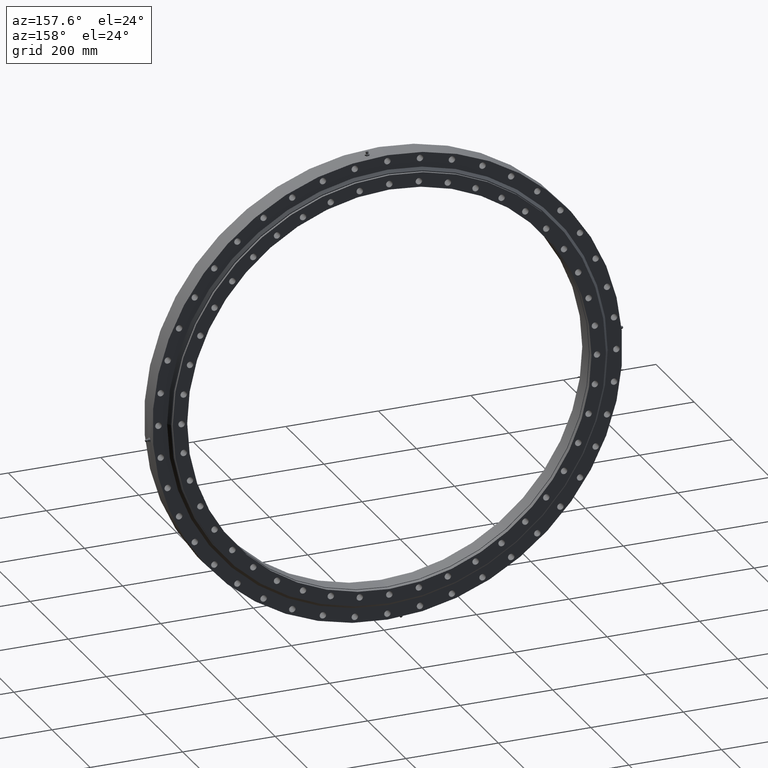
[diagram: clean part render]
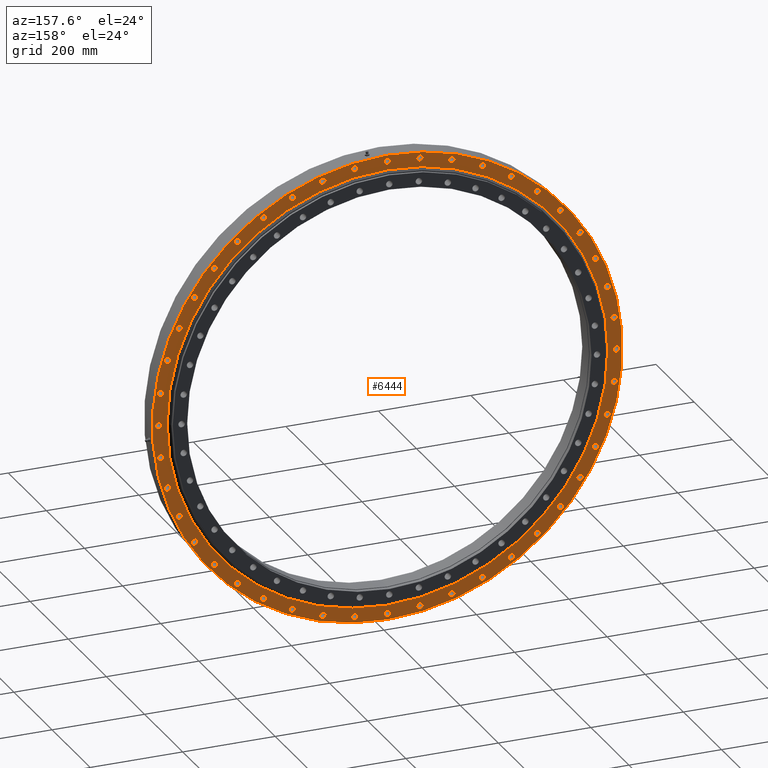
[diagram: same view with one face highlighted and labeled with its STEP entity id]
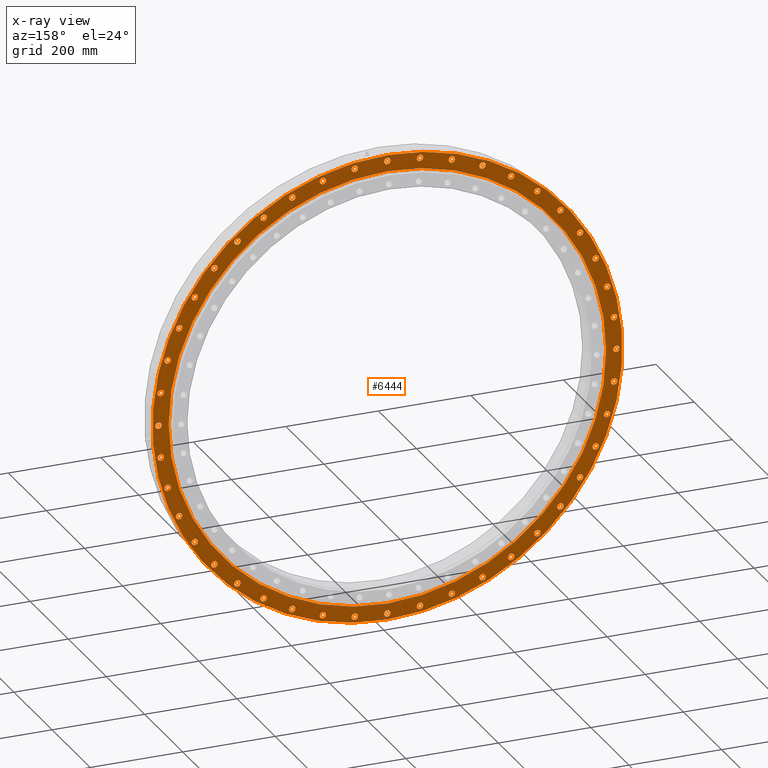
[diagram: x-ray of the same camera — body ghosted, the highlighted face saturated]
A machine part, auxiliary view. The second image highlights one B-rep face of the part: STEP entity #6444.
The next image is the same camera in x-ray: the body ghosted, the highlighted face saturated — about 0% of this face is hidden behind the body in this view.
In plain terms, the highlighted planar face has unit normal (0, -1, 0).
Its self-contained STEP definition (entity closure, byte-faithful):
#8 = CIRCLE ( 'NONE', #1474, 7.000000000000022200 ) ;
#10 = CARTESIAN_POINT ( 'NONE',  ( 7.216449660063517500E-012, 17.99999999999995700, 502.0000000000000000 ) ) ;
#39 = EDGE_CURVE ( 'NONE', #6232, #1084, #7481, .T. ) ;
#43 = CARTESIAN_POINT ( 'NONE',  ( -474.9490179562742500, 17.99999999999995700, 139.4576292010256700 ) ) ;
#77 = CIRCLE ( 'NONE', #8245, 6.999999999999991100 ) ;
#84 = EDGE_CURVE ( 'NONE', #3952, #6894, #2901, .T. ) ;
#97 = FACE_BOUND ( 'NONE', #2045, .T. ) ;
#100 = CARTESIAN_POINT ( 'NONE',  ( 450.2678611916500100, 17.99999999999995700, 205.6303799974532200 ) ) ;
#106 = CIRCLE ( 'NONE', #935, 6.999999999999991100 ) ;
#112 = EDGE_CURVE ( 'NONE', #8278, #6004, #2625, .T. ) ;
#114 = CARTESIAN_POINT ( 'NONE',  ( -70.44584339046126300, 17.99999999999995700, 489.9616139546103600 ) ) ;
#158 = CARTESIAN_POINT ( 'NONE',  ( -205.6304271493878000, 17.99999999999995700, 457.2678396580865300 ) ) ;
#164 = EDGE_CURVE ( 'NONE', #7247, #10180, #2354, .T. ) ;
#172 = CIRCLE ( 'NONE', #4763, 7.000000000000032900 ) ;
#173 = VERTEX_POINT ( 'NONE', #6764 ) ;
#183 = CIRCLE ( 'NONE', #9307, 6.999999999999974200 ) ;
#186 = EDGE_CURVE ( 'NONE', #6453, #10263, #8779, .T. ) ;
#194 = EDGE_CURVE ( 'NONE', #8345, #7351, #1818, .T. ) ;
#205 = AXIS2_PLACEMENT_3D ( 'NONE', #3393, #9539, #4300 ) ;
#231 = CARTESIAN_POINT ( 'NONE',  ( 474.9490082202947900, 17.99999999999995700, -139.4576623587185500 ) ) ;
#261 = CARTESIAN_POINT ( 'NONE',  ( -489.9616164136336900, 17.99999999999995700, -77.44582628757608200 ) ) ;
#265 = CARTESIAN_POINT ( 'NONE',  ( -374.0960557638059100, 17.99999999999995700, -324.1560443088536100 ) ) ;
#293 = AXIS2_PLACEMENT_3D ( 'NONE', #1385, #7474, #2249 ) ;
#310 = CIRCLE ( 'NONE', #10420, 7.000000000000022200 ) ;
#329 = ORIENTED_EDGE ( 'NONE', *, *, #392, .F. ) ;
#335 = EDGE_CURVE ( 'NONE', #4126, #7968, #10294, .T. ) ;
#348 = CIRCLE ( 'NONE', #8991, 7.000000000000009800 ) ;
#377 = FACE_BOUND ( 'NONE', #5515, .T. ) ;
#391 = DIRECTION ( 'NONE',  ( 0.9594930049055119300, 0.0000000000000000000, 0.2817324502739987900 ) ) ;
#392 = EDGE_CURVE ( 'NONE', #5286, #4321, #9475, .T. ) ;
#425 = DIRECTION ( 'NONE',  ( 0.5406409242384453400, 0.0000000000000000000, 0.8412534642060022200 ) ) ;
#474 = CIRCLE ( 'NONE', #1231, 7.000000000000002700 ) ;
#477 = VERTEX_POINT ( 'NONE', #8595 ) ;
#480 = ORIENTED_EDGE ( 'NONE', *, *, #10530, .F. ) ;
#483 = CIRCLE ( 'NONE', #9809, 6.999999999999988500 ) ;
#509 = ORIENTED_EDGE ( 'NONE', *, *, #3285, .F. ) ;
#528 = CARTESIAN_POINT ( 'NONE',  ( 450.2678611916500100, 17.99999999999995700, 205.6303799974532200 ) ) ;
#532 = DIRECTION ( 'NONE',  ( 0.0000000000000000000, 1.000000000000000000, 0.0000000000000000000 ) ) ;
#542 = VERTEX_POINT ( 'NONE', #5191 ) ;
#557 = CARTESIAN_POINT ( 'NONE',  ( -489.9616114955843500, 17.99999999999995700, 63.44586049336057000 ) ) ;
#559 = AXIS2_PLACEMENT_3D ( 'NONE', #2856, #8988, #3754 ) ;
#564 = CARTESIAN_POINT ( 'NONE',  ( -474.9490276922553600, 17.99999999999995700, -139.4575960433180900 ) ) ;
#566 = CARTESIAN_POINT ( 'NONE',  ( 374.0960783941637300, 17.99999999999995700, 317.1560181920239600 ) ) ;
#587 = DIRECTION ( 'NONE',  ( 0.4154149408379209700, 0.0000000000000000000, -0.9096320283106935600 ) ) ;
#594 = VERTEX_POINT ( 'NONE', #6956 ) ;
#605 = DIRECTION ( 'NONE',  ( 0.0000000000000000000, 1.000000000000000000, 0.0000000000000000000 ) ) ;
#623 = VERTEX_POINT ( 'NONE', #7900 ) ;
#645 = FACE_BOUND ( 'NONE', #6440, .T. ) ;
#647 = DIRECTION ( 'NONE',  ( 0.0000000000000000000, 1.000000000000000000, 0.0000000000000000000 ) ) ;
#649 = CARTESIAN_POINT ( 'NONE',  ( -205.6304271493878000, 17.99999999999995700, 443.2678396580865300 ) ) ;
#669 = CARTESIAN_POINT ( 'NONE',  ( -374.0960557638059100, 17.99999999999995700, -317.1560443088535500 ) ) ;
#674 = CARTESIAN_POINT ( 'NONE',  ( -416.4204928067750300, 17.99999999999995700, 274.6172138905915900 ) ) ;
#678 = CARTESIAN_POINT ( 'NONE',  ( -205.6304585840225900, 17.99999999999995700, -450.2678253023688600 ) ) ;
#680 = DIRECTION ( 'NONE',  ( 0.1423149733373891000, 0.0000000000000000000, 0.9898214224616369600 ) ) ;
#690 = CIRCLE ( 'NONE', #8570, 7.000000000000005300 ) ;
#704 = EDGE_CURVE ( 'NONE', #2749, #9750, #8767, .T. ) ;
#711 = ORIENTED_EDGE ( 'NONE', *, *, #164, .F. ) ;
#714 = DIRECTION ( 'NONE',  ( -0.8412535208217760700, 0.0000000000000000000, 0.5406408361425961700 ) ) ;
#720 = CARTESIAN_POINT ( 'NONE',  ( 0.0000000000000000000, 17.99999999999995700, 0.0000000000000000000 ) ) ;
#739 = EDGE_CURVE ( 'NONE', #2685, #594, #3843, .T. ) ;
#758 = DIRECTION ( 'NONE',  ( 0.0000000000000000000, 1.000000000000000000, 0.0000000000000000000 ) ) ;
#762 = AXIS2_PLACEMENT_3D ( 'NONE', #528, #6606, #1401 ) ;
#766 = ORIENTED_EDGE ( 'NONE', *, *, #704, .F. ) ;
#775 = AXIS2_PLACEMENT_3D ( 'NONE', #3665, #9806, #4556 ) ;
#782 = CARTESIAN_POINT ( 'NONE',  ( -267.6172284264074500, 17.99999999999995700, -416.4204834651725400 ) ) ;
#791 = CIRCLE ( 'NONE', #9110, 7.000000000000012400 ) ;
#800 = VERTEX_POINT ( 'NONE', #7487 ) ;
#854 = ORIENTED_EDGE ( 'NONE', *, *, #2108, .F. ) ;
#860 = VERTEX_POINT ( 'NONE', #6655 ) ;
#870 = EDGE_LOOP ( 'NONE', ( #1428, #1392 ) ) ;
#898 = AXIS2_PLACEMENT_3D ( 'NONE', #7758, #2538, #8649 ) ;
#917 = CIRCLE ( 'NONE', #10141, 7.000000000000016900 ) ;
#928 = DIRECTION ( 'NONE',  ( -0.9594929655682351600, 0.0000000000000000000, 0.2817325842444811100 ) ) ;
#935 = AXIS2_PLACEMENT_3D ( 'NONE', #5719, #532, #6612 ) ;
#958 = AXIS2_PLACEMENT_3D ( 'NONE', #9087, #3842, #9974 ) ;
#960 = CARTESIAN_POINT ( 'NONE',  ( 416.4205301731873300, 17.99999999999995700, 274.6171557473130100 ) ) ;
#966 = EDGE_CURVE ( 'NONE', #5012, #8385, #4797, .T. ) ;
#968 = DIRECTION ( 'NONE',  ( 0.0000000000000000000, 1.000000000000000000, 0.0000000000000000000 ) ) ;
#972 = DIRECTION ( 'NONE',  ( 0.9096320428114077500, 0.0000000000000000000, 0.4154149090857782200 ) ) ;
#986 = DIRECTION ( 'NONE',  ( -0.1423148351322593200, 0.0000000000000000000, 0.9898214423325439900 ) ) ;
#1009 = DIRECTION ( 'NONE',  ( 0.0000000000000000000, 1.000000000000000000, 0.0000000000000000000 ) ) ;
#1014 = DIRECTION ( 'NONE',  ( 0.0000000000000000000, 1.000000000000000000, 0.0000000000000000000 ) ) ;
#1064 = ORIENTED_EDGE ( 'NONE', *, *, #2890, .F. ) ;
#1084 = VERTEX_POINT ( 'NONE', #6635 ) ;
#1085 = DIRECTION ( 'NONE',  ( 0.0000000000000000000, 1.000000000000000000, 0.0000000000000000000 ) ) ;
#1096 = DIRECTION ( 'NONE',  ( 0.9594929458995895600, 0.0000000000000000000, -0.2817326512297204700 ) ) ;
#1104 = DIRECTION ( 'NONE',  ( 0.0000000000000000000, 1.000000000000000000, 0.0000000000000000000 ) ) ;
#1116 = EDGE_LOOP ( 'NONE', ( #3720, #10428 ) ) ;
#1119 = EDGE_CURVE ( 'NONE', #11145, #8109, #7649, .T. ) ;
#1124 = VERTEX_POINT ( 'NONE', #11055 ) ;
#1133 = DIRECTION ( 'NONE',  ( -0.7557496076036390700, 0.0000000000000000000, -0.6548606955734520600 ) ) ;
#1150 = ORIENTED_EDGE ( 'NONE', *, *, #2667, .F. ) ;
#1156 = CARTESIAN_POINT ( 'NONE',  ( 489.9616065775347800, 17.99999999999995700, -70.44589469913043400 ) ) ;
#1161 = FACE_BOUND ( 'NONE', #9586, .T. ) ;
#1164 = VERTEX_POINT ( 'NONE', #669 ) ;
#1170 = CIRCLE ( 'NONE', #3711, 7.000000000000012400 ) ;
#1204 = CIRCLE ( 'NONE', #10072, 7.000000000000016900 ) ;
#1207 = CARTESIAN_POINT ( 'NONE',  ( -474.9490179562742500, 17.99999999999995700, 132.4576292010256700 ) ) ;
#1222 = DIRECTION ( 'NONE',  ( -0.0000000000000000000, 1.000000000000000000, -0.0000000000000000000 ) ) ;
#1224 = CARTESIAN_POINT ( 'NONE',  ( 374.0960105030750900, 17.99999999999995700, -324.1560965425194900 ) ) ;
#1225 = EDGE_LOOP ( 'NONE', ( #3902, #1348 ) ) ;
#1231 = AXIS2_PLACEMENT_3D ( 'NONE', #1580, #7654, #2430 ) ;
#1290 = CIRCLE ( 'NONE', #4663, 7.000000000000005300 ) ;
#1293 = CIRCLE ( 'NONE', #1888, 472.7500000000000000 ) ;
#1314 = CIRCLE ( 'NONE', #2029, 7.000000000000016000 ) ;
#1318 = AXIS2_PLACEMENT_3D ( 'NONE', #7233, #2011, #8105 ) ;
#1330 = CIRCLE ( 'NONE', #5582, 7.000000000000016900 ) ;
#1345 = CARTESIAN_POINT ( 'NONE',  ( 70.44580918469084500, 17.99999999999995700, -496.9616188726563500 ) ) ;
#1348 = ORIENTED_EDGE ( 'NONE', *, *, #4151, .F. ) ;
#1352 = EDGE_CURVE ( 'NONE', #7462, #8450, #10134, .T. ) ;
#1363 = DIRECTION ( 'NONE',  ( 0.0000000000000000000, 1.000000000000000000, 0.0000000000000000000 ) ) ;
#1385 = CARTESIAN_POINT ( 'NONE',  ( 489.9616213316784300, 17.99999999999995700, 70.44579208180552100 ) ) ;
#1392 = ORIENTED_EDGE ( 'NONE', *, *, #3368, .F. ) ;
#1401 = DIRECTION ( 'NONE',  ( 0.9096320428114077500, 0.0000000000000000000, 0.4154149090857782200 ) ) ;
#1424 = FACE_BOUND ( 'NONE', #5401, .T. ) ;
#1428 = ORIENTED_EDGE ( 'NONE', *, *, #1352, .F. ) ;
#1445 = DIRECTION ( 'NONE',  ( 0.0000000000000000000, 1.000000000000000000, 0.0000000000000000000 ) ) ;
#1447 = DIRECTION ( 'NONE',  ( -0.9594929852368753200, 0.0000000000000000000, -0.2817325172592424200 ) ) ;
#1449 = CIRCLE ( 'NONE', #9112, 6.999999999999997300 ) ;
#1452 = AXIS2_PLACEMENT_3D ( 'NONE', #1471, #7555, #2319 ) ;
#1464 = CIRCLE ( 'NONE', #7129, 7.000000000000004400 ) ;
#1471 = CARTESIAN_POINT ( 'NONE',  ( 139.4575794644708500, 17.99999999999995700, -474.9490325602430400 ) ) ;
#1474 = AXIS2_PLACEMENT_3D ( 'NONE', #5132, #11268, #5999 ) ;
#1489 = CARTESIAN_POINT ( 'NONE',  ( -450.2678324802249700, 17.99999999999995700, 205.6304428667119700 ) ) ;
#1500 = DIRECTION ( 'NONE',  ( 0.0000000000000000000, 1.000000000000000000, 0.0000000000000000000 ) ) ;
#1511 = DIRECTION ( 'NONE',  ( 0.0000000000000000000, 1.000000000000000000, 0.0000000000000000000 ) ) ;
#1535 = FACE_BOUND ( 'NONE', #8968, .T. ) ;
#1543 = DIRECTION ( 'NONE',  ( -0.4154150678464958400, 0.0000000000000000000, -0.9096319703078225000 ) ) ;
#1558 = VERTEX_POINT ( 'NONE', #649 ) ;
#1573 = ORIENTED_EDGE ( 'NONE', *, *, #4911, .F. ) ;
#1580 = CARTESIAN_POINT ( 'NONE',  ( 205.6304900186434300, 17.99999999999995700, 450.2678109466550600 ) ) ;
#1583 = DIRECTION ( 'NONE',  ( 0.0000000000000000000, 1.000000000000000000, 0.0000000000000000000 ) ) ;
#1591 = DIRECTION ( 'NONE',  ( 0.0000000000000000000, 0.0000000000000000000, 1.000000000000000000 ) ) ;
#1605 = VERTEX_POINT ( 'NONE', #6809 ) ;
#1627 = DIRECTION ( 'NONE',  ( -0.5406408655078849300, 0.0000000000000000000, -0.8412535019498493800 ) ) ;
#1678 = CARTESIAN_POINT ( 'NONE',  ( -494.9999999999997200, 17.99999999999995700, -6.999982721234850700 ) ) ;
#1682 = EDGE_LOOP ( 'NONE', ( #8656, #6398 ) ) ;
#1683 = EDGE_LOOP ( 'NONE', ( #2580, #3066 ) ) ;
#1684 = CARTESIAN_POINT ( 'NONE',  ( 324.1561096009319800, 17.99999999999995700, 367.0959991878936500 ) ) ;
#1688 = AXIS2_PLACEMENT_3D ( 'NONE', #9198, #8301, #7174 ) ;
#1696 = CARTESIAN_POINT ( 'NONE',  ( -324.1560573672679200, 17.99999999999995700, 374.0960444486262300 ) ) ;
#1718 = ORIENTED_EDGE ( 'NONE', *, *, #2380, .F. ) ;
#1726 = ORIENTED_EDGE ( 'NONE', *, *, #5732, .F. ) ;
#1735 = DIRECTION ( 'NONE',  ( 0.0000000000000000000, 1.000000000000000000, 0.0000000000000000000 ) ) ;
#1738 = EDGE_CURVE ( 'NONE', #6894, #3952, #8841, .T. ) ;
#1764 = EDGE_CURVE ( 'NONE', #7968, #4126, #6230, .T. ) ;
#1778 = ORIENTED_EDGE ( 'NONE', *, *, #10238, .F. ) ;
#1790 = CIRCLE ( 'NONE', #10864, 6.999999999999986700 ) ;
#1818 = CIRCLE ( 'NONE', #8328, 6.999999999999984900 ) ;
#1821 = CIRCLE ( 'NONE', #2312, 6.999999999999992000 ) ;
#1828 = ORIENTED_EDGE ( 'NONE', *, *, #2813, .F. ) ;
#1859 = FACE_BOUND ( 'NONE', #1682, .T. ) ;
#1871 = CARTESIAN_POINT ( 'NONE',  ( 474.9490374282302100, 17.99999999999995700, 132.4575628856235600 ) ) ;
#1888 = AXIS2_PLACEMENT_3D ( 'NONE', #6408, #1222, #7307 ) ;
#1892 = CARTESIAN_POINT ( 'NONE',  ( -489.9616114955843500, 17.99999999999995700, 77.44586049336058400 ) ) ;
#1901 = CARTESIAN_POINT ( 'NONE',  ( 494.9999999999972700, 17.99999999999995700, -5.183628102079218400E-005 ) ) ;
#1905 = EDGE_CURVE ( 'NONE', #6313, #860, #7733, .T. ) ;
#1906 = AXIS2_PLACEMENT_3D ( 'NONE', #564, #6644, #1447 ) ;
#1936 = AXIS2_PLACEMENT_3D ( 'NONE', #1696, #7793, #2564 ) ;
#1955 = CARTESIAN_POINT ( 'NONE',  ( -70.44587759624553800, 17.99999999999995700, -482.9616090365598800 ) ) ;
#1966 = ORIENTED_EDGE ( 'NONE', *, *, #8951, .F. ) ;
#1971 = AXIS2_PLACEMENT_3D ( 'NONE', #1156, #7238, #2015 ) ;
#1976 = ORIENTED_EDGE ( 'NONE', *, *, #5297, .F. ) ;
#1985 = EDGE_CURVE ( 'NONE', #10085, #6314, #4601, .T. ) ;
#1994 = CARTESIAN_POINT ( 'NONE',  ( -139.4576457798721400, 17.99999999999995700, -481.9490130882848000 ) ) ;
#2011 = DIRECTION ( 'NONE',  ( 0.0000000000000000000, 1.000000000000000000, 0.0000000000000000000 ) ) ;
#2015 = DIRECTION ( 'NONE',  ( 0.9898214274293655200, 0.0000000000000000000, -0.1423149387861071800 ) ) ;
#2026 = CARTESIAN_POINT ( 'NONE',  ( 205.6303957147651400, 17.99999999999995700, -450.2678540137960100 ) ) ;
#2029 = AXIS2_PLACEMENT_3D ( 'NONE', #9396, #4153, #10270 ) ;
#2042 = DIRECTION ( 'NONE',  ( 0.0000000000000000000, 1.000000000000000000, 0.0000000000000000000 ) ) ;
#2043 = EDGE_LOOP ( 'NONE', ( #7691, #5221 ) ) ;
#2045 = EDGE_LOOP ( 'NONE', ( #1828, #6076 ) ) ;
#2071 = CARTESIAN_POINT ( 'NONE',  ( -450.2678468359415000, 17.99999999999995700, -198.6304114320765600 ) ) ;
#2074 = DIRECTION ( 'NONE',  ( 0.7557495161678371400, 0.0000000000000000000, -0.6548608010959885400 ) ) ;
#2083 = CARTESIAN_POINT ( 'NONE',  ( 489.9616213316784300, 17.99999999999995700, 63.44579208180552100 ) ) ;
#2098 = CARTESIAN_POINT ( 'NONE',  ( -416.4205114899859800, 17.99999999999995700, -267.6171848189470100 ) ) ;
#2108 = EDGE_CURVE ( 'NONE', #1558, #7633, #8150, .T. ) ;
#2111 = CIRCLE ( 'NONE', #9424, 7.000000000000022200 ) ;
#2129 = FACE_BOUND ( 'NONE', #7785, .T. ) ;
#2136 = CARTESIAN_POINT ( 'NONE',  ( -474.9490276922553600, 17.99999999999995700, -146.4575960433180900 ) ) ;
#2141 = CARTESIAN_POINT ( 'NONE',  ( -374.0960557638059100, 17.99999999999995700, -324.1560443088536100 ) ) ;
#2154 = AXIS2_PLACEMENT_3D ( 'NONE', #5947, #758, #6839 ) ;
#2160 = ORIENTED_EDGE ( 'NONE', *, *, #3823, .F. ) ;
#2167 = CARTESIAN_POINT ( 'NONE',  ( 324.1561096009319800, 17.99999999999995700, 374.0959991878936500 ) ) ;
#2178 = EDGE_LOOP ( 'NONE', ( #2731, #1966 ) ) ;
#2211 = ORIENTED_EDGE ( 'NONE', *, *, #2695, .F. ) ;
#2229 = AXIS2_PLACEMENT_3D ( 'NONE', #6203, #1009, #7090 ) ;
#2247 = EDGE_CURVE ( 'NONE', #6007, #3664, #106, .T. ) ;
#2248 = CIRCLE ( 'NONE', #4423, 6.999999999999976000 ) ;
#2249 = DIRECTION ( 'NONE',  ( 0.9898214572357118000, 0.0000000000000000000, 0.1423147314784101700 ) ) ;
#2250 = DIRECTION ( 'NONE',  ( 0.0000000000000000000, 1.000000000000000000, 0.0000000000000000000 ) ) ;
#2267 = ORIENTED_EDGE ( 'NONE', *, *, #2567, .F. ) ;
#2270 = EDGE_CURVE ( 'NONE', #4321, #5286, #5267, .T. ) ;
#2280 = AXIS2_PLACEMENT_3D ( 'NONE', #6712, #1500, #7593 ) ;
#2281 = VERTEX_POINT ( 'NONE', #566 ) ;
#2294 = VERTEX_POINT ( 'NONE', #3214 ) ;
#2304 = AXIS2_PLACEMENT_3D ( 'NONE', #2026, #8128, #2885 ) ;
#2308 = EDGE_CURVE ( 'NONE', #6129, #9879, #1330, .T. ) ;
#2312 = AXIS2_PLACEMENT_3D ( 'NONE', #100, #6163, #972 ) ;
#2319 = DIRECTION ( 'NONE',  ( 0.2817324837666218600, 0.0000000000000000000, -0.9594929950711939000 ) ) ;
#2336 = AXIS2_PLACEMENT_3D ( 'NONE', #43, #6103, #928 ) ;
#2346 = DIRECTION ( 'NONE',  ( -0.9096319848085406800, 0.0000000000000000000, 0.4154150360943553200 ) ) ;
#2347 = EDGE_CURVE ( 'NONE', #6832, #3448, #7722, .T. ) ;
#2354 = CIRCLE ( 'NONE', #5984, 7.000000000000014200 ) ;
#2374 = EDGE_LOOP ( 'NONE', ( #3018, #9241 ) ) ;
#2380 = EDGE_CURVE ( 'NONE', #6808, #4228, #791, .T. ) ;
#2382 = CARTESIAN_POINT ( 'NONE',  ( 324.1560312504389000, 17.99999999999995700, -374.0960670789850700 ) ) ;
#2389 = DIRECTION ( 'NONE',  ( 0.0000000000000000000, 1.000000000000000000, 0.0000000000000000000 ) ) ;
#2390 = CIRCLE ( 'NONE', #3383, 7.000000000000009800 ) ;
#2391 = FACE_BOUND ( 'NONE', #8737, .T. ) ;
#2398 = CARTESIAN_POINT ( 'NONE',  ( 205.6303957147651400, 17.99999999999995700, -443.2678540137959500 ) ) ;
#2422 = ORIENTED_EDGE ( 'NONE', *, *, #2347, .F. ) ;
#2424 = EDGE_CURVE ( 'NONE', #5767, #8603, #2804, .T. ) ;
#2430 = DIRECTION ( 'NONE',  ( 0.4154151313507815600, 0.0000000000000000000, 0.9096319413063797000 ) ) ;
#2441 = PLANE ( 'NONE',  #10146 ) ;
#2450 = VERTEX_POINT ( 'NONE', #11089 ) ;
#2451 = CARTESIAN_POINT ( 'NONE',  ( 474.9490374282302100, 17.99999999999995700, 146.4575628856235600 ) ) ;
#2461 = VERTEX_POINT ( 'NONE', #5830 ) ;
#2476 = VERTEX_POINT ( 'NONE', #9366 ) ;
#2493 = CARTESIAN_POINT ( 'NONE',  ( -267.6172284264074500, 17.99999999999995700, -423.4204834651725400 ) ) ;
#2496 = EDGE_CURVE ( 'NONE', #10650, #6589, #6917, .T. ) ;
#2498 = VERTEX_POINT ( 'NONE', #2398 ) ;
#2500 = CARTESIAN_POINT ( 'NONE',  ( 324.1560312504389000, 17.99999999999995700, -367.0960670789850700 ) ) ;
#2515 = AXIS2_PLACEMENT_3D ( 'NONE', #6794, #1583, #7657 ) ;
#2517 = CARTESIAN_POINT ( 'NONE',  ( -324.1560834841063200, 17.99999999999995700, -374.0960218182560200 ) ) ;
#2533 = EDGE_LOOP ( 'NONE', ( #1573, #5313 ) ) ;
#2538 = DIRECTION ( 'NONE',  ( 0.0000000000000000000, 1.000000000000000000, 0.0000000000000000000 ) ) ;
#2556 = CARTESIAN_POINT ( 'NONE',  ( -70.44587759624553800, 17.99999999999995700, -489.9616090365598800 ) ) ;
#2564 = DIRECTION ( 'NONE',  ( -0.6548607219540856200, 0.0000000000000000000, 0.7557495847446915600 ) ) ;
#2566 = DIRECTION ( 'NONE',  ( 0.0000000000000000000, 1.000000000000000000, 0.0000000000000000000 ) ) ;
#2567 = EDGE_CURVE ( 'NONE', #9750, #2749, #1464, .T. ) ;
#2575 = CIRCLE ( 'NONE', #8699, 7.000000000000014200 ) ;
#2576 = CIRCLE ( 'NONE', #7031, 6.999999999999991100 ) ;
#2577 = DIRECTION ( 'NONE',  ( 0.0000000000000000000, 1.000000000000000000, 0.0000000000000000000 ) ) ;
#2578 = ORIENTED_EDGE ( 'NONE', *, *, #8496, .F. ) ;
#2580 = ORIENTED_EDGE ( 'NONE', *, *, #6074, .F. ) ;
#2582 = CARTESIAN_POINT ( 'NONE',  ( -450.2678324802249700, 17.99999999999995700, 198.6304428667119700 ) ) ;
#2596 = CARTESIAN_POINT ( 'NONE',  ( -70.44584339046126300, 17.99999999999995700, 496.9616139546103600 ) ) ;
#2598 = VERTEX_POINT ( 'NONE', #1678 ) ;
#2618 = DIRECTION ( 'NONE',  ( 0.0000000000000000000, 1.000000000000000000, 0.0000000000000000000 ) ) ;
#2625 = CIRCLE ( 'NONE', #3059, 6.999999999999974200 ) ;
#2648 = EDGE_CURVE ( 'NONE', #9879, #6129, #1204, .T. ) ;
#2649 = CIRCLE ( 'NONE', #5365, 7.000000000000005300 ) ;
#2660 = DIRECTION ( 'NONE',  ( 0.0000000000000000000, 1.000000000000000000, 0.0000000000000000000 ) ) ;
#2663 = FACE_BOUND ( 'NONE', #7157, .T. ) ;
#2665 = VERTEX_POINT ( 'NONE', #2582 ) ;
#2667 = EDGE_CURVE ( 'NONE', #173, #6520, #9653, .T. ) ;
#2685 = VERTEX_POINT ( 'NONE', #7927 ) ;
#2695 = EDGE_CURVE ( 'NONE', #8410, #8159, #9372, .T. ) ;
#2705 = CARTESIAN_POINT ( 'NONE',  ( -70.44587759624553800, 17.99999999999995700, -496.9616090365598800 ) ) ;
#2716 = EDGE_CURVE ( 'NONE', #2281, #7061, #2390, .T. ) ;
#2731 = ORIENTED_EDGE ( 'NONE', *, *, #2247, .F. ) ;
#2749 = VERTEX_POINT ( 'NONE', #7936 ) ;
#2752 = VERTEX_POINT ( 'NONE', #2705 ) ;
#2758 = DIRECTION ( 'NONE',  ( 0.9999999999999945600, 0.0000000000000000000, -1.047197450592783300E-007 ) ) ;
#2780 = CARTESIAN_POINT ( 'NONE',  ( 474.9490082202947900, 17.99999999999995700, -146.4576623587185800 ) ) ;
#2804 = CIRCLE ( 'NONE', #10882, 7.000000000000012400 ) ;
#2806 = VERTEX_POINT ( 'NONE', #2780 ) ;
#2813 = EDGE_CURVE ( 'NONE', #5667, #2598, #3895, .T. ) ;
#2820 = DIRECTION ( 'NONE',  ( 0.0000000000000000000, 1.000000000000000000, 0.0000000000000000000 ) ) ;
#2823 = CARTESIAN_POINT ( 'NONE',  ( -324.1560834841063200, 17.99999999999995700, -374.0960218182560200 ) ) ;
#2832 = EDGE_CURVE ( 'NONE', #9448, #1164, #3616, .T. ) ;
#2856 = CARTESIAN_POINT ( 'NONE',  ( 205.6304900186434300, 17.99999999999995700, 450.2678109466550600 ) ) ;
#2885 = DIRECTION ( 'NONE',  ( 0.4154149408379209700, 0.0000000000000000000, -0.9096320283106935600 ) ) ;
#2886 = AXIS2_PLACEMENT_3D ( 'NONE', #3742, #9863, #4617 ) ;
#2890 = EDGE_CURVE ( 'NONE', #6004, #8278, #5385, .T. ) ;
#2901 = CIRCLE ( 'NONE', #1906, 6.999999999999994700 ) ;
#2926 = EDGE_LOOP ( 'NONE', ( #4239, #2422 ) ) ;
#2932 = FACE_BOUND ( 'NONE', #9353, .T. ) ;
#2941 = EDGE_LOOP ( 'NONE', ( #4043, #5283 ) ) ;
#2948 = EDGE_LOOP ( 'NONE', ( #3087, #3718 ) ) ;
#2950 = CARTESIAN_POINT ( 'NONE',  ( 416.4204741235697600, 17.99999999999995700, -260.6172429622226900 ) ) ;
#2953 = DIRECTION ( 'NONE',  ( -0.8412535585656205600, 0.0000000000000000000, -0.5406407774120259900 ) ) ;
#2975 = DIRECTION ( 'NONE',  ( 0.0000000000000000000, 1.000000000000000000, 0.0000000000000000000 ) ) ;
#2987 = CARTESIAN_POINT ( 'NONE',  ( 324.1560312504389000, 17.99999999999995700, -374.0960670789850700 ) ) ;
#2993 = DIRECTION ( 'NONE',  ( -0.7557496076036390700, 0.0000000000000000000, -0.6548606955734520600 ) ) ;
#3018 = ORIENTED_EDGE ( 'NONE', *, *, #6624, .F. ) ;
#3034 = DIRECTION ( 'NONE',  ( 0.6548608274766228900, 0.0000000000000000000, 0.7557494933088826400 ) ) ;
#3046 = AXIS2_PLACEMENT_3D ( 'NONE', #9740, #4493, #10622 ) ;
#3059 = AXIS2_PLACEMENT_3D ( 'NONE', #5811, #605, #6680 ) ;
#3066 = ORIENTED_EDGE ( 'NONE', *, *, #7366, .F. ) ;
#3087 = ORIENTED_EDGE ( 'NONE', *, *, #9923, .F. ) ;
#3201 = EDGE_CURVE ( 'NONE', #4412, #2450, #9517, .T. ) ;
#3214 = CARTESIAN_POINT ( 'NONE',  ( -3.455752308601138300E-005, 17.99999999999995700, -487.9999999999987500 ) ) ;
#3227 = CARTESIAN_POINT ( 'NONE',  ( 494.9999999999972700, 17.99999999999995700, 6.999948163718980400 ) ) ;
#3228 = EDGE_LOOP ( 'NONE', ( #8731, #6707 ) ) ;
#3239 = AXIS2_PLACEMENT_3D ( 'NONE', #4896, #11034, #5771 ) ;
#3245 = DIRECTION ( 'NONE',  ( 0.6548606691928178200, 0.0000000000000000000, -0.7557496304625858100 ) ) ;
#3261 = ORIENTED_EDGE ( 'NONE', *, *, #9183, .F. ) ;
#3285 = EDGE_CURVE ( 'NONE', #6520, #173, #8401, .T. ) ;
#3295 = CARTESIAN_POINT ( 'NONE',  ( -139.4576126221649900, 17.99999999999995700, 474.9490228242671000 ) ) ;
#3303 = DIRECTION ( 'NONE',  ( 0.0000000000000000000, 1.000000000000000000, 0.0000000000000000000 ) ) ;
#3340 = AXIS2_PLACEMENT_3D ( 'NONE', #4369, #10493, #5245 ) ;
#3368 = EDGE_CURVE ( 'NONE', #8450, #7462, #917, .T. ) ;
#3372 = AXIS2_PLACEMENT_3D ( 'NONE', #678, #6760, #1543 ) ;
#3378 = DIRECTION ( 'NONE',  ( -0.6548607747153580800, 0.0000000000000000000, -0.7557495390267869900 ) ) ;
#3383 = AXIS2_PLACEMENT_3D ( 'NONE', #9680, #4433, #10549 ) ;
#3393 = CARTESIAN_POINT ( 'NONE',  ( -474.9490276922553600, 17.99999999999995700, -139.4575960433180900 ) ) ;
#3424 = DIRECTION ( 'NONE',  ( -0.1423149042348239900, 0.0000000000000000000, -0.9898214323970929700 ) ) ;
#3445 = FACE_BOUND ( 'NONE', #3228, .T. ) ;
#3448 = VERTEX_POINT ( 'NONE', #8855 ) ;
#3457 = ORIENTED_EDGE ( 'NONE', *, *, #1905, .F. ) ;
#3472 = CARTESIAN_POINT ( 'NONE',  ( -450.2678324802249700, 17.99999999999995700, 212.6304428667119700 ) ) ;
#3517 = CARTESIAN_POINT ( 'NONE',  ( 489.9616065775347800, 17.99999999999995700, -77.44589469913043400 ) ) ;
#3570 = VERTEX_POINT ( 'NONE', #1207 ) ;
#3582 = CIRCLE ( 'NONE', #1318, 6.999999999999982200 ) ;
#3590 = EDGE_CURVE ( 'NONE', #9759, #477, #3891, .T. ) ;
#3595 = AXIS2_PLACEMENT_3D ( 'NONE', #4709, #10830, #5572 ) ;
#3603 = EDGE_CURVE ( 'NONE', #2476, #2806, #5656, .T. ) ;
#3616 = CIRCLE ( 'NONE', #9850, 6.999999999999990200 ) ;
#3628 = CARTESIAN_POINT ( 'NONE',  ( 489.9616213316784300, 17.99999999999995700, 77.44579208180553600 ) ) ;
#3630 = CARTESIAN_POINT ( 'NONE',  ( -267.6171993547633900, 17.99999999999995700, 416.4205021483846800 ) ) ;
#3656 = CARTESIAN_POINT ( 'NONE',  ( 7.216449660063517500E-012, 17.99999999999995700, 495.0000000000000000 ) ) ;
#3664 = VERTEX_POINT ( 'NONE', #4620 ) ;
#3665 = CARTESIAN_POINT ( 'NONE',  ( 374.0960783941637300, 17.99999999999995700, 324.1560181920239600 ) ) ;
#3674 = EDGE_LOOP ( 'NONE', ( #9434, #9470 ) ) ;
#3701 = DIRECTION ( 'NONE',  ( -0.6548607747153580800, 0.0000000000000000000, -0.7557495390267869900 ) ) ;
#3711 = AXIS2_PLACEMENT_3D ( 'NONE', #9076, #3826, #9960 ) ;
#3718 = ORIENTED_EDGE ( 'NONE', *, *, #3933, .F. ) ;
#3720 = ORIENTED_EDGE ( 'NONE', *, *, #1764, .F. ) ;
#3727 = FACE_BOUND ( 'NONE', #870, .T. ) ;
#3729 = EDGE_CURVE ( 'NONE', #7430, #7405, #2248, .T. ) ;
#3742 = CARTESIAN_POINT ( 'NONE',  ( -489.9616114955843500, 17.99999999999995700, 70.44586049336057000 ) ) ;
#3745 = CARTESIAN_POINT ( 'NONE',  ( -205.6304585840225900, 17.99999999999995700, -443.2678253023688600 ) ) ;
#3754 = DIRECTION ( 'NONE',  ( 0.4154151313507815600, 0.0000000000000000000, 0.9096319413063797000 ) ) ;
#3755 = EDGE_CURVE ( 'NONE', #1124, #9468, #8952, .T. ) ;
#3772 = DIRECTION ( 'NONE',  ( 0.0000000000000000000, 1.000000000000000000, 0.0000000000000000000 ) ) ;
#3810 = AXIS2_PLACEMENT_3D ( 'NONE', #7796, #2566, #8686 ) ;
#3823 = EDGE_CURVE ( 'NONE', #9982, #6171, #1449, .T. ) ;
#3826 = DIRECTION ( 'NONE',  ( 0.0000000000000000000, 1.000000000000000000, 0.0000000000000000000 ) ) ;
#3837 = FACE_BOUND ( 'NONE', #2178, .T. ) ;
#3842 = DIRECTION ( 'NONE',  ( 0.0000000000000000000, 1.000000000000000000, 0.0000000000000000000 ) ) ;
#3843 = CIRCLE ( 'NONE', #9084, 7.000000000000022200 ) ;
#3851 = DIRECTION ( 'NONE',  ( 0.0000000000000000000, 1.000000000000000000, 0.0000000000000000000 ) ) ;
#3884 = EDGE_LOOP ( 'NONE', ( #7686, #5111 ) ) ;
#3891 = CIRCLE ( 'NONE', #8732, 7.000000000000032900 ) ;
#3894 = DIRECTION ( 'NONE',  ( 0.6548606691928178200, 0.0000000000000000000, -0.7557496304625858100 ) ) ;
#3895 = CIRCLE ( 'NONE', #8073, 6.999999999999954700 ) ;
#3897 = FACE_OUTER_BOUND ( 'NONE', #8108, .T. ) ;
#3901 = DIRECTION ( 'NONE',  ( 0.0000000000000000000, 1.000000000000000000, 0.0000000000000000000 ) ) ;
#3902 = ORIENTED_EDGE ( 'NONE', *, *, #7851, .F. ) ;
#3911 = DIRECTION ( 'NONE',  ( 0.0000000000000000000, 1.000000000000000000, 0.0000000000000000000 ) ) ;
#3933 = EDGE_CURVE ( 'NONE', #542, #623, #2649, .T. ) ;
#3942 = AXIS2_PLACEMENT_3D ( 'NONE', #4071, #10213, #4960 ) ;
#3952 = VERTEX_POINT ( 'NONE', #4192 ) ;
#3960 = ORIENTED_EDGE ( 'NONE', *, *, #9575, .F. ) ;
#3979 = AXIS2_PLACEMENT_3D ( 'NONE', #9002, #3772, #9899 ) ;
#4004 = CIRCLE ( 'NONE', #1971, 6.999999999999986700 ) ;
#4025 = AXIS2_PLACEMENT_3D ( 'NONE', #5840, #647, #6721 ) ;
#4043 = ORIENTED_EDGE ( 'NONE', *, *, #10365, .F. ) ;
#4071 = CARTESIAN_POINT ( 'NONE',  ( 324.1561096009319800, 17.99999999999995700, 374.0959991878936500 ) ) ;
#4126 = VERTEX_POINT ( 'NONE', #4612 ) ;
#4147 = CIRCLE ( 'NONE', #10607, 6.999999999999995600 ) ;
#4151 = EDGE_CURVE ( 'NONE', #1605, #10834, #7697, .T. ) ;
#4153 = DIRECTION ( 'NONE',  ( 0.0000000000000000000, 1.000000000000000000, 0.0000000000000000000 ) ) ;
#4158 = DIRECTION ( 'NONE',  ( -0.0000000000000000000, 1.000000000000000000, -0.0000000000000000000 ) ) ;
#4169 = FACE_BOUND ( 'NONE', #9299, .T. ) ;
#4184 = DIRECTION ( 'NONE',  ( -0.2817325507518626500, 0.0000000000000000000, 0.9594929754025555100 ) ) ;
#4186 = ORIENTED_EDGE ( 'NONE', *, *, #10619, .F. ) ;
#4192 = CARTESIAN_POINT ( 'NONE',  ( -474.9490276922553600, 17.99999999999995700, -132.4575960433180900 ) ) ;
#4203 = AXIS2_PLACEMENT_3D ( 'NONE', #9403, #4158, #10275 ) ;
#4204 = DIRECTION ( 'NONE',  ( 0.0000000000000000000, 1.000000000000000000, 0.0000000000000000000 ) ) ;
#4206 = DIRECTION ( 'NONE',  ( 0.0000000000000000000, 1.000000000000000000, 0.0000000000000000000 ) ) ;
#4228 = VERTEX_POINT ( 'NONE', #7325 ) ;
#4239 = ORIENTED_EDGE ( 'NONE', *, *, #5785, .F. ) ;
#4256 = ORIENTED_EDGE ( 'NONE', *, *, #7377, .F. ) ;
#4300 = DIRECTION ( 'NONE',  ( -0.9594929852368753200, 0.0000000000000000000, -0.2817325172592424200 ) ) ;
#4303 = CIRCLE ( 'NONE', #7875, 6.999999999999984900 ) ;
#4321 = VERTEX_POINT ( 'NONE', #9377 ) ;
#4333 = AXIS2_PLACEMENT_3D ( 'NONE', #9728, #5581, #391 ) ;
#4369 = CARTESIAN_POINT ( 'NONE',  ( 7.216449660063517500E-012, 17.99999999999995700, 495.0000000000000000 ) ) ;
#4401 = DIRECTION ( 'NONE',  ( 0.0000000000000000000, -1.000000000000000000, 0.0000000000000000000 ) ) ;
#4404 = DIRECTION ( 'NONE',  ( 0.0000000000000000000, 1.000000000000000000, 0.0000000000000000000 ) ) ;
#4412 = VERTEX_POINT ( 'NONE', #2596 ) ;
#4423 = AXIS2_PLACEMENT_3D ( 'NONE', #9094, #3851, #9976 ) ;
#4433 = DIRECTION ( 'NONE',  ( 0.0000000000000000000, 1.000000000000000000, 0.0000000000000000000 ) ) ;
#4434 = CIRCLE ( 'NONE', #293, 6.999999999999997300 ) ;
#4446 = FACE_BOUND ( 'NONE', #1683, .T. ) ;
#4481 = EDGE_CURVE ( 'NONE', #1164, #9448, #4691, .T. ) ;
#4493 = DIRECTION ( 'NONE',  ( 0.0000000000000000000, 1.000000000000000000, 0.0000000000000000000 ) ) ;
#4511 = DIRECTION ( 'NONE',  ( -0.5406408067773105200, 0.0000000000000000000, 0.8412535396936995400 ) ) ;
#4543 = DIRECTION ( 'NONE',  ( 0.0000000000000000000, 0.0000000000000000000, 1.000000000000000000 ) ) ;
#4556 = DIRECTION ( 'NONE',  ( 0.7557496533215347600, 0.0000000000000000000, 0.6548606428121788200 ) ) ;
#4569 = DIRECTION ( 'NONE',  ( -0.0000000000000000000, 1.000000000000000000, -0.0000000000000000000 ) ) ;
#4599 = CARTESIAN_POINT ( 'NONE',  ( 0.0000000000000000000, 17.99999999999995700, 508.0000000000000000 ) ) ;
#4601 = CIRCLE ( 'NONE', #559, 7.000000000000002700 ) ;
#4612 = CARTESIAN_POINT ( 'NONE',  ( -324.1560573672679200, 17.99999999999995700, 367.0960444486262300 ) ) ;
#4617 = DIRECTION ( 'NONE',  ( -0.9898214373648190900, 0.0000000000000000000, 0.1423148696835417300 ) ) ;
#4620 = CARTESIAN_POINT ( 'NONE',  ( 139.4576789375648200, 17.99999999999995700, 467.9490033523042000 ) ) ;
#4663 = AXIS2_PLACEMENT_3D ( 'NONE', #6209, #1014, #7096 ) ;
#4665 = CARTESIAN_POINT ( 'NONE',  ( -267.6172284264074500, 17.99999999999995700, -416.4204834651725400 ) ) ;
#4690 = AXIS2_PLACEMENT_3D ( 'NONE', #8225, #2975, #9111 ) ;
#4691 = CIRCLE ( 'NONE', #4939, 6.999999999999990200 ) ;
#4709 = CARTESIAN_POINT ( 'NONE',  ( -3.455752308601138300E-005, 17.99999999999995700, -494.9999999999987500 ) ) ;
#4713 = CARTESIAN_POINT ( 'NONE',  ( 7.217306912822919800E-012, 17.99999999999995700, 488.0000000000000000 ) ) ;
#4720 = FACE_BOUND ( 'NONE', #4953, .T. ) ;
#4722 = ORIENTED_EDGE ( 'NONE', *, *, #112, .F. ) ;
#4738 = EDGE_CURVE ( 'NONE', #6314, #10085, #474, .T. ) ;
#4763 = AXIS2_PLACEMENT_3D ( 'NONE', #10025, #4769, #10907 ) ;
#4769 = DIRECTION ( 'NONE',  ( 0.0000000000000000000, 1.000000000000000000, 0.0000000000000000000 ) ) ;
#4797 = CIRCLE ( 'NONE', #8267, 6.999999999999988500 ) ;
#4808 = AXIS2_PLACEMENT_3D ( 'NONE', #6272, #1085, #7176 ) ;
#4841 = EDGE_CURVE ( 'NONE', #860, #6313, #9482, .T. ) ;
#4855 = AXIS2_PLACEMENT_3D ( 'NONE', #10435, #5179, #11323 ) ;
#4896 = CARTESIAN_POINT ( 'NONE',  ( -139.4576457798721400, 17.99999999999995700, -474.9490130882848000 ) ) ;
#4911 = EDGE_CURVE ( 'NONE', #8936, #7300, #5491, .T. ) ;
#4921 = CARTESIAN_POINT ( 'NONE',  ( 416.4204741235697600, 17.99999999999995700, -267.6172429622227500 ) ) ;
#4939 = AXIS2_PLACEMENT_3D ( 'NONE', #2141, #8250, #2993 ) ;
#4953 = EDGE_LOOP ( 'NONE', ( #6147, #6239 ) ) ;
#4960 = DIRECTION ( 'NONE',  ( 0.6548608274766228900, 0.0000000000000000000, 0.7557494933088826400 ) ) ;
#4988 = AXIS2_PLACEMENT_3D ( 'NONE', #114, #6184, #986 ) ;
#4990 = FACE_BOUND ( 'NONE', #2374, .T. ) ;
#5004 = AXIS2_PLACEMENT_3D ( 'NONE', #720, #6806, #1591 ) ;
#5012 = VERTEX_POINT ( 'NONE', #9412 ) ;
#5017 = CARTESIAN_POINT ( 'NONE',  ( -3.455752308515413800E-005, 17.99999999999995700, -501.9999999999988100 ) ) ;
#5020 = CARTESIAN_POINT ( 'NONE',  ( 70.44591180201523200, 17.99999999999995700, 489.9616041185091100 ) ) ;
#5027 = ORIENTED_EDGE ( 'NONE', *, *, #1985, .F. ) ;
#5059 = CARTESIAN_POINT ( 'NONE',  ( 374.0960105030750900, 17.99999999999995700, -331.1560965425194900 ) ) ;
#5098 = CARTESIAN_POINT ( 'NONE',  ( 70.44580918469084500, 17.99999999999995700, -482.9616188726563500 ) ) ;
#5108 = CIRCLE ( 'NONE', #2886, 7.000000000000012400 ) ;
#5111 = ORIENTED_EDGE ( 'NONE', *, *, #2716, .F. ) ;
#5132 = CARTESIAN_POINT ( 'NONE',  ( -70.44587759624553800, 17.99999999999995700, -489.9616090365598800 ) ) ;
#5137 = ORIENTED_EDGE ( 'NONE', *, *, #6970, .F. ) ;
#5177 = EDGE_LOOP ( 'NONE', ( #7582, #3457 ) ) ;
#5179 = DIRECTION ( 'NONE',  ( 0.0000000000000000000, 1.000000000000000000, 0.0000000000000000000 ) ) ;
#5185 = VERTEX_POINT ( 'NONE', #10546 ) ;
#5191 = CARTESIAN_POINT ( 'NONE',  ( -374.0960331334366600, 17.99999999999995700, 317.1560704256927500 ) ) ;
#5198 = CIRCLE ( 'NONE', #4988, 7.000000000000009800 ) ;
#5213 = AXIS2_PLACEMENT_3D ( 'NONE', #7277, #2042, #8152 ) ;
#5221 = ORIENTED_EDGE ( 'NONE', *, *, #7687, .F. ) ;
#5239 = ORIENTED_EDGE ( 'NONE', *, *, #2496, .T. ) ;
#5245 = DIRECTION ( 'NONE',  ( 0.0000000000000000000, 0.0000000000000000000, 1.000000000000000000 ) ) ;
#5259 = FACE_BOUND ( 'NONE', #2533, .T. ) ;
#5266 = AXIS2_PLACEMENT_3D ( 'NONE', #9818, #4569, #10688 ) ;
#5267 = CIRCLE ( 'NONE', #3239, 6.999999999999990200 ) ;
#5283 = ORIENTED_EDGE ( 'NONE', *, *, #3755, .F. ) ;
#5286 = VERTEX_POINT ( 'NONE', #1994 ) ;
#5297 = EDGE_CURVE ( 'NONE', #10668, #10980, #5108, .T. ) ;
#5311 = EDGE_CURVE ( 'NONE', #8569, #2498, #9493, .T. ) ;
#5313 = ORIENTED_EDGE ( 'NONE', *, *, #8195, .F. ) ;
#5323 = CIRCLE ( 'NONE', #3595, 7.000000000000023100 ) ;
#5365 = AXIS2_PLACEMENT_3D ( 'NONE', #8548, #3303, #9431 ) ;
#5385 = CIRCLE ( 'NONE', #1452, 6.999999999999974200 ) ;
#5401 = EDGE_LOOP ( 'NONE', ( #2160, #5137 ) ) ;
#5414 = VERTEX_POINT ( 'NONE', #5017 ) ;
#5439 = CARTESIAN_POINT ( 'NONE',  ( 324.1561096009319800, 17.99999999999995700, 381.0959991878936500 ) ) ;
#5490 = FACE_BOUND ( 'NONE', #7262, .T. ) ;
#5491 = CIRCLE ( 'NONE', #10001, 6.999999999999974200 ) ;
#5515 = EDGE_LOOP ( 'NONE', ( #8877, #7115 ) ) ;
#5520 = CARTESIAN_POINT ( 'NONE',  ( 205.6303957147651400, 17.99999999999995700, -457.2678540137960100 ) ) ;
#5546 = DIRECTION ( 'NONE',  ( -0.5406408655078849300, 0.0000000000000000000, -0.8412535019498493800 ) ) ;
#5572 = DIRECTION ( 'NONE',  ( -6.981316337285155500E-008, 0.0000000000000000000, -0.9999999999999975600 ) ) ;
#5581 = DIRECTION ( 'NONE',  ( 0.0000000000000000000, 1.000000000000000000, 0.0000000000000000000 ) ) ;
#5582 = AXIS2_PLACEMENT_3D ( 'NONE', #6724, #1511, #7602 ) ;
#5584 = AXIS2_PLACEMENT_3D ( 'NONE', #2987, #9122, #3894 ) ;
#5620 = DIRECTION ( 'NONE',  ( 0.0000000000000000000, 1.000000000000000000, 0.0000000000000000000 ) ) ;
#5635 = ORIENTED_EDGE ( 'NONE', *, *, #1119, .F. ) ;
#5656 = CIRCLE ( 'NONE', #9332, 6.999999999999982200 ) ;
#5667 = VERTEX_POINT ( 'NONE', #9771 ) ;
#5692 = CARTESIAN_POINT ( 'NONE',  ( 450.2678611916500100, 17.99999999999995700, 212.6303799974532200 ) ) ;
#5714 = ORIENTED_EDGE ( 'NONE', *, *, #10888, .F. ) ;
#5719 = CARTESIAN_POINT ( 'NONE',  ( 139.4576789375648200, 17.99999999999995700, 474.9490033523042000 ) ) ;
#5732 = EDGE_CURVE ( 'NONE', #2806, #2476, #3582, .T. ) ;
#5765 = FACE_BOUND ( 'NONE', #9205, .T. ) ;
#5767 = VERTEX_POINT ( 'NONE', #7271 ) ;
#5771 = DIRECTION ( 'NONE',  ( -0.2817326177371027300, 0.0000000000000000000, -0.9594929557339122500 ) ) ;
#5785 = EDGE_CURVE ( 'NONE', #3448, #6832, #1293, .T. ) ;
#5788 = CARTESIAN_POINT ( 'NONE',  ( 450.2678181245122500, 17.99999999999995700, -198.6304743013331200 ) ) ;
#5793 = DIRECTION ( 'NONE',  ( 0.0000000000000000000, 1.000000000000000000, 0.0000000000000000000 ) ) ;
#5801 = DIRECTION ( 'NONE',  ( 0.8412534830779274700, 0.0000000000000000000, -0.5406408948731636900 ) ) ;
#5811 = CARTESIAN_POINT ( 'NONE',  ( 139.4575794644708500, 17.99999999999995700, -474.9490325602430400 ) ) ;
#5830 = CARTESIAN_POINT ( 'NONE',  ( -474.9490179562742500, 17.99999999999995700, 146.4576292010256700 ) ) ;
#5840 = CARTESIAN_POINT ( 'NONE',  ( -139.4576457798721400, 17.99999999999995700, -474.9490130882848000 ) ) ;
#5870 = DIRECTION ( 'NONE',  ( 0.0000000000000000000, 1.000000000000000000, 0.0000000000000000000 ) ) ;
#5888 = DIRECTION ( 'NONE',  ( 0.1423149733373891000, 0.0000000000000000000, 0.9898214224616369600 ) ) ;
#5913 = DIRECTION ( 'NONE',  ( 0.0000000000000000000, 1.000000000000000000, 0.0000000000000000000 ) ) ;
#5944 = EDGE_LOOP ( 'NONE', ( #3960, #480 ) ) ;
#5947 = CARTESIAN_POINT ( 'NONE',  ( -450.2678324802249700, 17.99999999999995700, 205.6304428667119700 ) ) ;
#5984 = AXIS2_PLACEMENT_3D ( 'NONE', #11147, #5870, #680 ) ;
#5991 = CARTESIAN_POINT ( 'NONE',  ( 416.4205301731873300, 17.99999999999995700, 260.6171557473130100 ) ) ;
#5999 = DIRECTION ( 'NONE',  ( -0.1423149042348239900, 0.0000000000000000000, -0.9898214323970929700 ) ) ;
#6004 = VERTEX_POINT ( 'NONE', #9328 ) ;
#6007 = VERTEX_POINT ( 'NONE', #7596 ) ;
#6038 = FACE_BOUND ( 'NONE', #7741, .T. ) ;
#6074 = EDGE_CURVE ( 'NONE', #7920, #2665, #9331, .T. ) ;
#6076 = ORIENTED_EDGE ( 'NONE', *, *, #9667, .F. ) ;
#6103 = DIRECTION ( 'NONE',  ( 0.0000000000000000000, 1.000000000000000000, 0.0000000000000000000 ) ) ;
#6114 = CIRCLE ( 'NONE', #4808, 7.000000000000006200 ) ;
#6117 = CARTESIAN_POINT ( 'NONE',  ( -324.1560573672679200, 17.99999999999995700, 381.0960444486262300 ) ) ;
#6129 = VERTEX_POINT ( 'NONE', #960 ) ;
#6143 = FACE_BOUND ( 'NONE', #3884, .T. ) ;
#6147 = ORIENTED_EDGE ( 'NONE', *, *, #84, .F. ) ;
#6157 = CARTESIAN_POINT ( 'NONE',  ( 474.9490374282302100, 17.99999999999995700, 139.4575628856235600 ) ) ;
#6163 = DIRECTION ( 'NONE',  ( 0.0000000000000000000, 1.000000000000000000, 0.0000000000000000000 ) ) ;
#6171 = VERTEX_POINT ( 'NONE', #2083 ) ;
#6184 = DIRECTION ( 'NONE',  ( 0.0000000000000000000, 1.000000000000000000, 0.0000000000000000000 ) ) ;
#6203 = CARTESIAN_POINT ( 'NONE',  ( -489.9616164136336900, 17.99999999999995700, -70.44582628757608200 ) ) ;
#6207 = FACE_BOUND ( 'NONE', #2926, .T. ) ;
#6209 = CARTESIAN_POINT ( 'NONE',  ( -416.4204928067750300, 17.99999999999995700, 267.6172138905915900 ) ) ;
#6225 = CARTESIAN_POINT ( 'NONE',  ( 267.6171702831302400, 17.99999999999995700, -423.4205208315868800 ) ) ;
#6230 = CIRCLE ( 'NONE', #1936, 7.000000000000014200 ) ;
#6232 = VERTEX_POINT ( 'NONE', #5692 ) ;
#6239 = ORIENTED_EDGE ( 'NONE', *, *, #1738, .F. ) ;
#6272 = CARTESIAN_POINT ( 'NONE',  ( -205.6304271493878000, 17.99999999999995700, 450.2678396580865300 ) ) ;
#6289 = DIRECTION ( 'NONE',  ( 0.0000000000000000000, 1.000000000000000000, 0.0000000000000000000 ) ) ;
#6298 = CARTESIAN_POINT ( 'NONE',  ( 489.9616065775347800, 17.99999999999995700, -70.44589469913043400 ) ) ;
#6313 = VERTEX_POINT ( 'NONE', #6653 ) ;
#6314 = VERTEX_POINT ( 'NONE', #10150 ) ;
#6331 = DIRECTION ( 'NONE',  ( 0.0000000000000000000, 1.000000000000000000, 0.0000000000000000000 ) ) ;
#6380 = VERTEX_POINT ( 'NONE', #7607 ) ;
#6398 = ORIENTED_EDGE ( 'NONE', *, *, #7393, .F. ) ;
#6408 = CARTESIAN_POINT ( 'NONE',  ( 0.0000000000000000000, 17.99999999999995700, 0.0000000000000000000 ) ) ;
#6440 = EDGE_LOOP ( 'NONE', ( #11222, #9380 ) ) ;
#6444 = ADVANCED_FACE ( 'NONE', ( #6705, #3837, #1535, #8481, #10547, #6143, #8209, #6038, #3727, #1424, #10433, #8093, #5765, #3445, #1161, #10167, #7821, #5490, #9936, #7581, #5259, #2932, #645, #9656, #7318, #4990, #2663, #377, #9373, #7043, #4720, #2391, #97, #9098, #6766, #4446, #2129, #11164, #8823, #6483, #4169, #1859, #10886, #8544, #6207, #3897 ), #2441, .F. ) ;
#6453 = VERTEX_POINT ( 'NONE', #9655 ) ;
#6480 = AXIS2_PLACEMENT_3D ( 'NONE', #1489, #7578, #2346 ) ;
#6483 = FACE_BOUND ( 'NONE', #5177, .T. ) ;
#6501 = ORIENTED_EDGE ( 'NONE', *, *, #966, .F. ) ;
#6520 = VERTEX_POINT ( 'NONE', #6225 ) ;
#6537 = CARTESIAN_POINT ( 'NONE',  ( 139.4575794644708500, 17.99999999999995700, -467.9490325602429800 ) ) ;
#6564 = CARTESIAN_POINT ( 'NONE',  ( -450.2678468359415000, 17.99999999999995700, -205.6304114320765600 ) ) ;
#6588 = EDGE_LOOP ( 'NONE', ( #7560, #3261 ) ) ;
#6589 = VERTEX_POINT ( 'NONE', #4599 ) ;
#6606 = DIRECTION ( 'NONE',  ( 0.0000000000000000000, 1.000000000000000000, 0.0000000000000000000 ) ) ;
#6612 = DIRECTION ( 'NONE',  ( 0.2817326847223414800, 0.0000000000000000000, 0.9594929360652645300 ) ) ;
#6624 = EDGE_CURVE ( 'NONE', #6380, #8939, #11295, .T. ) ;
#6635 = CARTESIAN_POINT ( 'NONE',  ( 450.2678611916500100, 17.99999999999995700, 198.6303799974531900 ) ) ;
#6643 = CARTESIAN_POINT ( 'NONE',  ( 70.44580918469084500, 17.99999999999995700, -489.9616188726563500 ) ) ;
#6644 = DIRECTION ( 'NONE',  ( 0.0000000000000000000, 1.000000000000000000, 0.0000000000000000000 ) ) ;
#6653 = CARTESIAN_POINT ( 'NONE',  ( -267.6171993547633900, 17.99999999999995700, 409.4205021483846800 ) ) ;
#6655 = CARTESIAN_POINT ( 'NONE',  ( -267.6171993547633900, 17.99999999999995700, 423.4205021483846800 ) ) ;
#6661 = CARTESIAN_POINT ( 'NONE',  ( 450.2678181245122500, 17.99999999999995700, -212.6304743013331500 ) ) ;
#6680 = DIRECTION ( 'NONE',  ( 0.2817324837666218600, 0.0000000000000000000, -0.9594929950711939000 ) ) ;
#6698 = ORIENTED_EDGE ( 'NONE', *, *, #8037, .F. ) ;
#6705 = FACE_BOUND ( 'NONE', #11169, .T. ) ;
#6707 = ORIENTED_EDGE ( 'NONE', *, *, #194, .F. ) ;
#6712 = CARTESIAN_POINT ( 'NONE',  ( 416.4204741235697600, 17.99999999999995700, -267.6172429622227500 ) ) ;
#6713 = AXIS2_PLACEMENT_3D ( 'NONE', #1224, #7311, #2074 ) ;
#6721 = DIRECTION ( 'NONE',  ( -0.2817326177371027300, 0.0000000000000000000, -0.9594929557339122500 ) ) ;
#6724 = CARTESIAN_POINT ( 'NONE',  ( 416.4205301731873300, 17.99999999999995700, 267.6171557473130100 ) ) ;
#6725 = EDGE_LOOP ( 'NONE', ( #8849, #329 ) ) ;
#6740 = ORIENTED_EDGE ( 'NONE', *, *, #10836, .F. ) ;
#6754 = CIRCLE ( 'NONE', #8683, 6.999999999999992000 ) ;
#6760 = DIRECTION ( 'NONE',  ( 0.0000000000000000000, 1.000000000000000000, 0.0000000000000000000 ) ) ;
#6764 = CARTESIAN_POINT ( 'NONE',  ( 267.6171702831302400, 17.99999999999995700, -409.4205208315868800 ) ) ;
#6766 = FACE_BOUND ( 'NONE', #5944, .T. ) ;
#6794 = CARTESIAN_POINT ( 'NONE',  ( -70.44584339046126300, 17.99999999999995700, 489.9616139546103600 ) ) ;
#6806 = DIRECTION ( 'NONE',  ( -0.0000000000000000000, 1.000000000000000000, -0.0000000000000000000 ) ) ;
#6808 = VERTEX_POINT ( 'NONE', #3745 ) ;
#6809 = CARTESIAN_POINT ( 'NONE',  ( -450.2678468359415000, 17.99999999999995700, -212.6304114320765600 ) ) ;
#6821 = CARTESIAN_POINT ( 'NONE',  ( 374.0960105030750900, 17.99999999999995700, -317.1560965425194900 ) ) ;
#6832 = VERTEX_POINT ( 'NONE', #8168 ) ;
#6839 = DIRECTION ( 'NONE',  ( -0.9096319848085406800, 0.0000000000000000000, 0.4154150360943553200 ) ) ;
#6852 = CARTESIAN_POINT ( 'NONE',  ( 0.0000000000000000000, 17.99999999999995700, 508.0000000000000000 ) ) ;
#6867 = DIRECTION ( 'NONE',  ( 0.0000000000000000000, 1.000000000000000000, 0.0000000000000000000 ) ) ;
#6870 = ORIENTED_EDGE ( 'NONE', *, *, #7034, .F. ) ;
#6894 = VERTEX_POINT ( 'NONE', #2136 ) ;
#6917 = CIRCLE ( 'NONE', #4203, 508.0000000000000000 ) ;
#6927 = EDGE_CURVE ( 'NONE', #8109, #11145, #6754, .T. ) ;
#6956 = CARTESIAN_POINT ( 'NONE',  ( -139.4576126221649900, 17.99999999999995700, 467.9490228242671000 ) ) ;
#6960 = CARTESIAN_POINT ( 'NONE',  ( -374.0960331334366600, 17.99999999999995700, 324.1560704256928000 ) ) ;
#6970 = EDGE_CURVE ( 'NONE', #6171, #9982, #4434, .T. ) ;
#7025 = CIRCLE ( 'NONE', #6480, 7.000000000000011500 ) ;
#7031 = AXIS2_PLACEMENT_3D ( 'NONE', #10883, #5620, #425 ) ;
#7034 = EDGE_CURVE ( 'NONE', #8159, #8410, #1314, .T. ) ;
#7043 = FACE_BOUND ( 'NONE', #1225, .T. ) ;
#7053 = CARTESIAN_POINT ( 'NONE',  ( 70.44591180201523200, 17.99999999999995700, 482.9616041185091100 ) ) ;
#7057 = DIRECTION ( 'NONE',  ( 0.9594930049055119300, 0.0000000000000000000, 0.2817324502739987900 ) ) ;
#7061 = VERTEX_POINT ( 'NONE', #9246 ) ;
#7090 = DIRECTION ( 'NONE',  ( -0.9898214473002678900, 0.0000000000000000000, -0.1423148005809767000 ) ) ;
#7096 = DIRECTION ( 'NONE',  ( -0.8412535208217760700, 0.0000000000000000000, 0.5406408361425961700 ) ) ;
#7115 = ORIENTED_EDGE ( 'NONE', *, *, #2832, .F. ) ;
#7129 = AXIS2_PLACEMENT_3D ( 'NONE', #2517, #8625, #3378 ) ;
#7131 = ORIENTED_EDGE ( 'NONE', *, *, #7532, .F. ) ;
#7143 = AXIS2_PLACEMENT_3D ( 'NONE', #4665, #10790, #5546 ) ;
#7157 = EDGE_LOOP ( 'NONE', ( #2267, #766 ) ) ;
#7166 = EDGE_CURVE ( 'NONE', #7351, #8345, #4303, .T. ) ;
#7174 = DIRECTION ( 'NONE',  ( -0.6548607219540856200, 0.0000000000000000000, 0.7557495847446915600 ) ) ;
#7176 = DIRECTION ( 'NONE',  ( -0.4154150043422111200, 0.0000000000000000000, 0.9096319993092595300 ) ) ;
#7178 = AXIS2_PLACEMENT_3D ( 'NONE', #11181, #5913, #714 ) ;
#7196 = VERTEX_POINT ( 'NONE', #10 ) ;
#7199 = DIRECTION ( 'NONE',  ( 0.9898214274293655200, 0.0000000000000000000, -0.1423149387861071800 ) ) ;
#7207 = AXIS2_PLACEMENT_3D ( 'NONE', #3630, #9766, #4511 ) ;
#7233 = CARTESIAN_POINT ( 'NONE',  ( 474.9490082202947900, 17.99999999999995700, -139.4576623587185500 ) ) ;
#7236 = CIRCLE ( 'NONE', #4690, 6.999999999999954700 ) ;
#7238 = DIRECTION ( 'NONE',  ( 0.0000000000000000000, 1.000000000000000000, 0.0000000000000000000 ) ) ;
#7247 = VERTEX_POINT ( 'NONE', #7053 ) ;
#7262 = EDGE_LOOP ( 'NONE', ( #1150, #509 ) ) ;
#7264 = CARTESIAN_POINT ( 'NONE',  ( 205.6304900186434300, 17.99999999999995700, 443.2678109466550600 ) ) ;
#7271 = CARTESIAN_POINT ( 'NONE',  ( 416.4204741235697600, 17.99999999999995700, -274.6172429622227500 ) ) ;
#7274 = EDGE_LOOP ( 'NONE', ( #4256, #8989 ) ) ;
#7277 = CARTESIAN_POINT ( 'NONE',  ( -205.6304271493878000, 17.99999999999995700, 450.2678396580865300 ) ) ;
#7300 = VERTEX_POINT ( 'NONE', #1345 ) ;
#7307 = DIRECTION ( 'NONE',  ( 0.0000000000000000000, 0.0000000000000000000, 1.000000000000000000 ) ) ;
#7311 = DIRECTION ( 'NONE',  ( 0.0000000000000000000, 1.000000000000000000, 0.0000000000000000000 ) ) ;
#7318 = FACE_BOUND ( 'NONE', #8695, .T. ) ;
#7325 = CARTESIAN_POINT ( 'NONE',  ( -205.6304585840225900, 17.99999999999995700, -457.2678253023688600 ) ) ;
#7351 = VERTEX_POINT ( 'NONE', #5788 ) ;
#7366 = EDGE_CURVE ( 'NONE', #2665, #7920, #7025, .T. ) ;
#7377 = EDGE_CURVE ( 'NONE', #800, #5185, #77, .T. ) ;
#7393 = EDGE_CURVE ( 'NONE', #594, #2685, #2111, .T. ) ;
#7405 = VERTEX_POINT ( 'NONE', #5059 ) ;
#7430 = VERTEX_POINT ( 'NONE', #6821 ) ;
#7435 = EDGE_CURVE ( 'NONE', #8939, #6380, #4147, .T. ) ;
#7459 = DIRECTION ( 'NONE',  ( -0.9096320138099771600, 0.0000000000000000000, -0.4154149725900663200 ) ) ;
#7462 = VERTEX_POINT ( 'NONE', #2451 ) ;
#7474 = DIRECTION ( 'NONE',  ( 0.0000000000000000000, 1.000000000000000000, 0.0000000000000000000 ) ) ;
#7475 = CARTESIAN_POINT ( 'NONE',  ( 489.9616213316784300, 17.99999999999995700, 70.44579208180552100 ) ) ;
#7481 = CIRCLE ( 'NONE', #762, 6.999999999999992000 ) ;
#7487 = CARTESIAN_POINT ( 'NONE',  ( 267.6172574980378700, 17.99999999999995700, 423.4204647819663600 ) ) ;
#7515 = DIRECTION ( 'NONE',  ( 0.1423147660296931200, 0.0000000000000000000, -0.9898214522679904500 ) ) ;
#7532 = EDGE_CURVE ( 'NONE', #9242, #7196, #9770, .T. ) ;
#7555 = DIRECTION ( 'NONE',  ( 0.0000000000000000000, 1.000000000000000000, 0.0000000000000000000 ) ) ;
#7560 = ORIENTED_EDGE ( 'NONE', *, *, #3729, .F. ) ;
#7578 = DIRECTION ( 'NONE',  ( 0.0000000000000000000, 1.000000000000000000, 0.0000000000000000000 ) ) ;
#7581 = FACE_BOUND ( 'NONE', #10252, .T. ) ;
#7582 = ORIENTED_EDGE ( 'NONE', *, *, #4841, .F. ) ;
#7586 = AXIS2_PLACEMENT_3D ( 'NONE', #3656, #9794, #4543 ) ;
#7593 = DIRECTION ( 'NONE',  ( 0.8412534830779274700, 0.0000000000000000000, -0.5406408948731636900 ) ) ;
#7596 = CARTESIAN_POINT ( 'NONE',  ( 139.4576789375648200, 17.99999999999995700, 481.9490033523042000 ) ) ;
#7602 = DIRECTION ( 'NONE',  ( 0.8412535963094622800, 0.0000000000000000000, 0.5406407186814513600 ) ) ;
#7607 = CARTESIAN_POINT ( 'NONE',  ( -267.6172284264074500, 17.99999999999995700, -409.4204834651725400 ) ) ;
#7612 = EDGE_CURVE ( 'NONE', #8385, #5012, #483, .T. ) ;
#7615 = CARTESIAN_POINT ( 'NONE',  ( 267.6172574980378700, 17.99999999999995700, 416.4204647819663600 ) ) ;
#7633 = VERTEX_POINT ( 'NONE', #158 ) ;
#7649 = CIRCLE ( 'NONE', #3942, 6.999999999999992000 ) ;
#7654 = DIRECTION ( 'NONE',  ( 0.0000000000000000000, 1.000000000000000000, 0.0000000000000000000 ) ) ;
#7657 = DIRECTION ( 'NONE',  ( -0.1423148351322593200, 0.0000000000000000000, 0.9898214423325439900 ) ) ;
#7678 = CIRCLE ( 'NONE', #7586, 7.000000000000006200 ) ;
#7686 = ORIENTED_EDGE ( 'NONE', *, *, #10002, .F. ) ;
#7687 = EDGE_CURVE ( 'NONE', #9064, #9118, #4004, .T. ) ;
#7688 = CARTESIAN_POINT ( 'NONE',  ( -374.0960557638059100, 17.99999999999995700, -331.1560443088536100 ) ) ;
#7691 = ORIENTED_EDGE ( 'NONE', *, *, #10717, .F. ) ;
#7697 = CIRCLE ( 'NONE', #3979, 7.000000000000009800 ) ;
#7722 = CIRCLE ( 'NONE', #5004, 472.7500000000000000 ) ;
#7733 = CIRCLE ( 'NONE', #7207, 6.999999999999976000 ) ;
#7741 = EDGE_LOOP ( 'NONE', ( #9156, #8888 ) ) ;
#7754 = EDGE_CURVE ( 'NONE', #10980, #10668, #1170, .T. ) ;
#7758 = CARTESIAN_POINT ( 'NONE',  ( 139.4576789375648200, 17.99999999999995700, 474.9490033523042000 ) ) ;
#7781 = EDGE_LOOP ( 'NONE', ( #8963, #4186 ) ) ;
#7785 = EDGE_LOOP ( 'NONE', ( #9544, #10003 ) ) ;
#7793 = DIRECTION ( 'NONE',  ( 0.0000000000000000000, 1.000000000000000000, 0.0000000000000000000 ) ) ;
#7796 = CARTESIAN_POINT ( 'NONE',  ( -474.9490179562742500, 17.99999999999995700, 139.4576292010256700 ) ) ;
#7814 = CARTESIAN_POINT ( 'NONE',  ( 450.2678181245122500, 17.99999999999995700, -205.6304743013331200 ) ) ;
#7821 = FACE_BOUND ( 'NONE', #2941, .T. ) ;
#7840 = DIRECTION ( 'NONE',  ( -0.7557495618857397200, 0.0000000000000000000, 0.6548607483347223000 ) ) ;
#7851 = EDGE_CURVE ( 'NONE', #10834, #1605, #348, .T. ) ;
#7860 = EDGE_LOOP ( 'NONE', ( #10822, #6501 ) ) ;
#7862 = CARTESIAN_POINT ( 'NONE',  ( 416.4205301731873300, 17.99999999999995700, 267.6171557473130100 ) ) ;
#7875 = AXIS2_PLACEMENT_3D ( 'NONE', #7814, #2577, #8698 ) ;
#7891 = CARTESIAN_POINT ( 'NONE',  ( 267.6171702831302400, 17.99999999999995700, -416.4205208315868800 ) ) ;
#7897 = AXIS2_PLACEMENT_3D ( 'NONE', #2823, #8949, #3701 ) ;
#7900 = CARTESIAN_POINT ( 'NONE',  ( -374.0960331334366600, 17.99999999999995700, 331.1560704256928000 ) ) ;
#7920 = VERTEX_POINT ( 'NONE', #3472 ) ;
#7927 = CARTESIAN_POINT ( 'NONE',  ( -139.4576126221649900, 17.99999999999995700, 481.9490228242671000 ) ) ;
#7936 = CARTESIAN_POINT ( 'NONE',  ( -324.1560834841063200, 17.99999999999995700, -381.0960218182560200 ) ) ;
#7953 = EDGE_LOOP ( 'NONE', ( #9675, #5635 ) ) ;
#7968 = VERTEX_POINT ( 'NONE', #6117 ) ;
#7969 = ORIENTED_EDGE ( 'NONE', *, *, #3590, .F. ) ;
#7972 = EDGE_CURVE ( 'NONE', #1084, #6232, #1821, .T. ) ;
#7994 = EDGE_CURVE ( 'NONE', #10263, #6453, #1290, .T. ) ;
#7998 = DIRECTION ( 'NONE',  ( 0.0000000000000000000, 1.000000000000000000, 0.0000000000000000000 ) ) ;
#8037 = EDGE_CURVE ( 'NONE', #7196, #9242, #7678, .T. ) ;
#8042 = ORIENTED_EDGE ( 'NONE', *, *, #7754, .F. ) ;
#8045 = CARTESIAN_POINT ( 'NONE',  ( -494.9999999999997200, 17.99999999999995700, 1.727876515123053200E-005 ) ) ;
#8067 = VERTEX_POINT ( 'NONE', #1955 ) ;
#8070 = CIRCLE ( 'NONE', #3810, 6.999999999999997300 ) ;
#8073 = AXIS2_PLACEMENT_3D ( 'NONE', #8045, #2820, #8945 ) ;
#8080 = EDGE_LOOP ( 'NONE', ( #1976, #8042 ) ) ;
#8082 = CIRCLE ( 'NONE', #775, 7.000000000000009800 ) ;
#8093 = FACE_BOUND ( 'NONE', #2043, .T. ) ;
#8105 = DIRECTION ( 'NONE',  ( 0.9594929458995895600, 0.0000000000000000000, -0.2817326512297204700 ) ) ;
#8108 = EDGE_LOOP ( 'NONE', ( #8689, #5239 ) ) ;
#8109 = VERTEX_POINT ( 'NONE', #5439 ) ;
#8128 = DIRECTION ( 'NONE',  ( 0.0000000000000000000, 1.000000000000000000, 0.0000000000000000000 ) ) ;
#8150 = CIRCLE ( 'NONE', #5213, 7.000000000000006200 ) ;
#8152 = DIRECTION ( 'NONE',  ( -0.4154150043422111200, 0.0000000000000000000, 0.9096319993092595300 ) ) ;
#8159 = VERTEX_POINT ( 'NONE', #261 ) ;
#8168 = CARTESIAN_POINT ( 'NONE',  ( 5.789517742969112300E-014, 17.99999999999995700, -472.7500000000000000 ) ) ;
#8191 = DIRECTION ( 'NONE',  ( 0.0000000000000000000, 1.000000000000000000, 0.0000000000000000000 ) ) ;
#8195 = EDGE_CURVE ( 'NONE', #7300, #8936, #10670, .T. ) ;
#8209 = FACE_BOUND ( 'NONE', #3674, .T. ) ;
#8225 = CARTESIAN_POINT ( 'NONE',  ( -494.9999999999997200, 17.99999999999995700, 1.727876515123053200E-005 ) ) ;
#8245 = AXIS2_PLACEMENT_3D ( 'NONE', #7615, #2389, #8492 ) ;
#8250 = DIRECTION ( 'NONE',  ( 0.0000000000000000000, 1.000000000000000000, 0.0000000000000000000 ) ) ;
#8267 = AXIS2_PLACEMENT_3D ( 'NONE', #9658, #4404, #10520 ) ;
#8276 = DIRECTION ( 'NONE',  ( 0.0000000000000000000, 1.000000000000000000, 0.0000000000000000000 ) ) ;
#8278 = VERTEX_POINT ( 'NONE', #6537 ) ;
#8301 = DIRECTION ( 'NONE',  ( 0.0000000000000000000, 1.000000000000000000, 0.0000000000000000000 ) ) ;
#8328 = AXIS2_PLACEMENT_3D ( 'NONE', #9443, #4204, #10328 ) ;
#8337 = EDGE_CURVE ( 'NONE', #2498, #8569, #9292, .T. ) ;
#8345 = VERTEX_POINT ( 'NONE', #6661 ) ;
#8351 = DIRECTION ( 'NONE',  ( 0.9898214572357118000, 0.0000000000000000000, 0.1423147314784101700 ) ) ;
#8385 = VERTEX_POINT ( 'NONE', #3227 ) ;
#8401 = CIRCLE ( 'NONE', #4855, 7.000000000000020400 ) ;
#8410 = VERTEX_POINT ( 'NONE', #9631 ) ;
#8440 = CARTESIAN_POINT ( 'NONE',  ( -416.4205114899859800, 17.99999999999995700, -260.6171848189470100 ) ) ;
#8450 = VERTEX_POINT ( 'NONE', #1871 ) ;
#8453 = EDGE_CURVE ( 'NONE', #2294, #5414, #10519, .T. ) ;
#8481 = FACE_BOUND ( 'NONE', #7274, .T. ) ;
#8484 = DIRECTION ( 'NONE',  ( 0.0000000000000000000, 1.000000000000000000, 0.0000000000000000000 ) ) ;
#8487 = CIRCLE ( 'NONE', #2280, 7.000000000000012400 ) ;
#8492 = DIRECTION ( 'NONE',  ( 0.5406409242384453400, 0.0000000000000000000, 0.8412534642060022200 ) ) ;
#8496 = EDGE_CURVE ( 'NONE', #7633, #1558, #6114, .T. ) ;
#8526 = EDGE_LOOP ( 'NONE', ( #10843, #10844 ) ) ;
#8544 = FACE_BOUND ( 'NONE', #9310, .T. ) ;
#8548 = CARTESIAN_POINT ( 'NONE',  ( -374.0960331334366600, 17.99999999999995700, 324.1560704256928000 ) ) ;
#8569 = VERTEX_POINT ( 'NONE', #5520 ) ;
#8570 = AXIS2_PLACEMENT_3D ( 'NONE', #6960, #1735, #7840 ) ;
#8595 = CARTESIAN_POINT ( 'NONE',  ( -416.4205114899859800, 17.99999999999995700, -274.6171848189470100 ) ) ;
#8603 = VERTEX_POINT ( 'NONE', #2950 ) ;
#8625 = DIRECTION ( 'NONE',  ( 0.0000000000000000000, 1.000000000000000000, 0.0000000000000000000 ) ) ;
#8649 = DIRECTION ( 'NONE',  ( 0.2817326847223414800, 0.0000000000000000000, 0.9594929360652645300 ) ) ;
#8656 = ORIENTED_EDGE ( 'NONE', *, *, #739, .F. ) ;
#8671 = DIRECTION ( 'NONE',  ( 0.0000000000000000000, 1.000000000000000000, 0.0000000000000000000 ) ) ;
#8683 = AXIS2_PLACEMENT_3D ( 'NONE', #2167, #8276, #3034 ) ;
#8686 = DIRECTION ( 'NONE',  ( -0.9594929655682351600, 0.0000000000000000000, 0.2817325842444811100 ) ) ;
#8689 = ORIENTED_EDGE ( 'NONE', *, *, #9660, .T. ) ;
#8695 = EDGE_LOOP ( 'NONE', ( #1718, #10017 ) ) ;
#8698 = DIRECTION ( 'NONE',  ( 0.9096319558071001000, 0.0000000000000000000, -0.4154150995986420300 ) ) ;
#8699 = AXIS2_PLACEMENT_3D ( 'NONE', #5020, #11157, #5888 ) ;
#8731 = ORIENTED_EDGE ( 'NONE', *, *, #7166, .F. ) ;
#8732 = AXIS2_PLACEMENT_3D ( 'NONE', #2098, #8191, #2953 ) ;
#8733 = DIRECTION ( 'NONE',  ( 0.8412535963094622800, 0.0000000000000000000, 0.5406407186814513600 ) ) ;
#8737 = EDGE_LOOP ( 'NONE', ( #2211, #6870 ) ) ;
#8767 = CIRCLE ( 'NONE', #7897, 7.000000000000004400 ) ;
#8772 = DIRECTION ( 'NONE',  ( 0.5406407480467390100, 0.0000000000000000000, -0.8412535774375419200 ) ) ;
#8779 = CIRCLE ( 'NONE', #7178, 7.000000000000005300 ) ;
#8823 = FACE_BOUND ( 'NONE', #1116, .T. ) ;
#8826 = AXIS2_PLACEMENT_3D ( 'NONE', #9131, #3901, #10027 ) ;
#8841 = CIRCLE ( 'NONE', #205, 6.999999999999994700 ) ;
#8849 = ORIENTED_EDGE ( 'NONE', *, *, #2270, .F. ) ;
#8855 = CARTESIAN_POINT ( 'NONE',  ( 0.0000000000000000000, 17.99999999999995700, 472.7500000000000000 ) ) ;
#8867 = EDGE_CURVE ( 'NONE', #10180, #7247, #2575, .T. ) ;
#8877 = ORIENTED_EDGE ( 'NONE', *, *, #4481, .F. ) ;
#8888 = ORIENTED_EDGE ( 'NONE', *, *, #7972, .F. ) ;
#8936 = VERTEX_POINT ( 'NONE', #5098 ) ;
#8939 = VERTEX_POINT ( 'NONE', #2493 ) ;
#8943 = EDGE_CURVE ( 'NONE', #2752, #8067, #8, .T. ) ;
#8945 = DIRECTION ( 'NONE',  ( -0.9999999999999993300, 0.0000000000000000000, 3.490658168642611500E-008 ) ) ;
#8949 = DIRECTION ( 'NONE',  ( 0.0000000000000000000, 1.000000000000000000, 0.0000000000000000000 ) ) ;
#8951 = EDGE_CURVE ( 'NONE', #3664, #6007, #11069, .T. ) ;
#8952 = CIRCLE ( 'NONE', #5584, 6.999999999999974200 ) ;
#8963 = ORIENTED_EDGE ( 'NONE', *, *, #3201, .F. ) ;
#8968 = EDGE_LOOP ( 'NONE', ( #10954, #5027 ) ) ;
#8988 = DIRECTION ( 'NONE',  ( 0.0000000000000000000, 1.000000000000000000, 0.0000000000000000000 ) ) ;
#8989 = ORIENTED_EDGE ( 'NONE', *, *, #9686, .F. ) ;
#8991 = AXIS2_PLACEMENT_3D ( 'NONE', #6564, #1363, #7459 ) ;
#9002 = CARTESIAN_POINT ( 'NONE',  ( -450.2678468359415000, 17.99999999999995700, -205.6304114320765600 ) ) ;
#9064 = VERTEX_POINT ( 'NONE', #3517 ) ;
#9076 = CARTESIAN_POINT ( 'NONE',  ( -489.9616114955843500, 17.99999999999995700, 70.44586049336057000 ) ) ;
#9084 = AXIS2_PLACEMENT_3D ( 'NONE', #9140, #3911, #10042 ) ;
#9087 = CARTESIAN_POINT ( 'NONE',  ( 70.44580918469084500, 17.99999999999995700, -489.9616188726563500 ) ) ;
#9094 = CARTESIAN_POINT ( 'NONE',  ( 374.0960105030750900, 17.99999999999995700, -324.1560965425194900 ) ) ;
#9098 = FACE_BOUND ( 'NONE', #8080, .T. ) ;
#9110 = AXIS2_PLACEMENT_3D ( 'NONE', #9451, #4206, #10332 ) ;
#9111 = DIRECTION ( 'NONE',  ( -0.9999999999999993300, 0.0000000000000000000, 3.490658168642611500E-008 ) ) ;
#9112 = AXIS2_PLACEMENT_3D ( 'NONE', #7475, #2250, #8351 ) ;
#9118 = VERTEX_POINT ( 'NONE', #9727 ) ;
#9122 = DIRECTION ( 'NONE',  ( 0.0000000000000000000, 1.000000000000000000, 0.0000000000000000000 ) ) ;
#9128 = AXIS2_PLACEMENT_3D ( 'NONE', #11050, #5793, #587 ) ;
#9131 = CARTESIAN_POINT ( 'NONE',  ( -267.6171993547633900, 17.99999999999995700, 416.4205021483846800 ) ) ;
#9140 = CARTESIAN_POINT ( 'NONE',  ( -139.4576126221649900, 17.99999999999995700, 474.9490228242671000 ) ) ;
#9156 = ORIENTED_EDGE ( 'NONE', *, *, #39, .F. ) ;
#9183 = EDGE_CURVE ( 'NONE', #7405, #7430, #11205, .T. ) ;
#9198 = CARTESIAN_POINT ( 'NONE',  ( -324.1560573672679200, 17.99999999999995700, 374.0960444486262300 ) ) ;
#9205 = EDGE_LOOP ( 'NONE', ( #9621, #1726 ) ) ;
#9241 = ORIENTED_EDGE ( 'NONE', *, *, #7435, .F. ) ;
#9242 = VERTEX_POINT ( 'NONE', #4713 ) ;
#9246 = CARTESIAN_POINT ( 'NONE',  ( 374.0960783941637300, 17.99999999999995700, 331.1560181920239600 ) ) ;
#9253 = CARTESIAN_POINT ( 'NONE',  ( 70.44591180201523200, 17.99999999999995700, 496.9616041185091700 ) ) ;
#9292 = CIRCLE ( 'NONE', #9128, 7.000000000000022200 ) ;
#9299 = EDGE_LOOP ( 'NONE', ( #2578, #854 ) ) ;
#9307 = AXIS2_PLACEMENT_3D ( 'NONE', #2382, #8484, #3245 ) ;
#9310 = EDGE_LOOP ( 'NONE', ( #6698, #7131 ) ) ;
#9328 = CARTESIAN_POINT ( 'NONE',  ( 139.4575794644708500, 17.99999999999995700, -481.9490325602430400 ) ) ;
#9331 = CIRCLE ( 'NONE', #2154, 7.000000000000011500 ) ;
#9332 = AXIS2_PLACEMENT_3D ( 'NONE', #231, #6289, #1096 ) ;
#9343 = CARTESIAN_POINT ( 'NONE',  ( -324.1560834841063200, 17.99999999999995700, -367.0960218182560200 ) ) ;
#9353 = EDGE_LOOP ( 'NONE', ( #10266, #6740 ) ) ;
#9366 = CARTESIAN_POINT ( 'NONE',  ( 474.9490082202947900, 17.99999999999995700, -132.4576623587185500 ) ) ;
#9372 = CIRCLE ( 'NONE', #2229, 7.000000000000016000 ) ;
#9373 = FACE_BOUND ( 'NONE', #10210, .T. ) ;
#9377 = CARTESIAN_POINT ( 'NONE',  ( -139.4576457798721400, 17.99999999999995700, -467.9490130882848000 ) ) ;
#9380 = ORIENTED_EDGE ( 'NONE', *, *, #8943, .F. ) ;
#9396 = CARTESIAN_POINT ( 'NONE',  ( -489.9616164136336900, 17.99999999999995700, -70.44582628757608200 ) ) ;
#9403 = CARTESIAN_POINT ( 'NONE',  ( 0.0000000000000000000, 17.99999999999995700, 0.0000000000000000000 ) ) ;
#9412 = CARTESIAN_POINT ( 'NONE',  ( 494.9999999999972700, 17.99999999999995700, -7.000051836281023100 ) ) ;
#9424 = AXIS2_PLACEMENT_3D ( 'NONE', #3295, #9425, #4184 ) ;
#9425 = DIRECTION ( 'NONE',  ( 0.0000000000000000000, 1.000000000000000000, 0.0000000000000000000 ) ) ;
#9431 = DIRECTION ( 'NONE',  ( -0.7557495618857397200, 0.0000000000000000000, 0.6548607483347223000 ) ) ;
#9434 = ORIENTED_EDGE ( 'NONE', *, *, #2308, .F. ) ;
#9443 = CARTESIAN_POINT ( 'NONE',  ( 450.2678181245122500, 17.99999999999995700, -205.6304743013331200 ) ) ;
#9448 = VERTEX_POINT ( 'NONE', #7688 ) ;
#9451 = CARTESIAN_POINT ( 'NONE',  ( -205.6304585840225900, 17.99999999999995700, -450.2678253023688600 ) ) ;
#9468 = VERTEX_POINT ( 'NONE', #2500 ) ;
#9470 = ORIENTED_EDGE ( 'NONE', *, *, #2648, .F. ) ;
#9475 = CIRCLE ( 'NONE', #4025, 6.999999999999990200 ) ;
#9482 = CIRCLE ( 'NONE', #8826, 6.999999999999976000 ) ;
#9493 = CIRCLE ( 'NONE', #2304, 7.000000000000022200 ) ;
#9517 = CIRCLE ( 'NONE', #2515, 7.000000000000009800 ) ;
#9539 = DIRECTION ( 'NONE',  ( 0.0000000000000000000, 1.000000000000000000, 0.0000000000000000000 ) ) ;
#9544 = ORIENTED_EDGE ( 'NONE', *, *, #7994, .F. ) ;
#9575 = EDGE_CURVE ( 'NONE', #2461, #3570, #10113, .T. ) ;
#9586 = EDGE_LOOP ( 'NONE', ( #1778, #10524 ) ) ;
#9621 = ORIENTED_EDGE ( 'NONE', *, *, #3603, .F. ) ;
#9631 = CARTESIAN_POINT ( 'NONE',  ( -489.9616164136336900, 17.99999999999995700, -63.44582628757606800 ) ) ;
#9653 = CIRCLE ( 'NONE', #11251, 7.000000000000020400 ) ;
#9655 = CARTESIAN_POINT ( 'NONE',  ( -416.4204928067750300, 17.99999999999995700, 260.6172138905915900 ) ) ;
#9656 = FACE_BOUND ( 'NONE', #6725, .T. ) ;
#9658 = CARTESIAN_POINT ( 'NONE',  ( 494.9999999999972700, 17.99999999999995700, -5.183628102079218400E-005 ) ) ;
#9660 = EDGE_CURVE ( 'NONE', #6589, #10650, #9841, .T. ) ;
#9667 = EDGE_CURVE ( 'NONE', #2598, #5667, #7236, .T. ) ;
#9675 = ORIENTED_EDGE ( 'NONE', *, *, #6927, .F. ) ;
#9680 = CARTESIAN_POINT ( 'NONE',  ( 374.0960783941637300, 17.99999999999995700, 324.1560181920239600 ) ) ;
#9686 = EDGE_CURVE ( 'NONE', #5185, #800, #2576, .T. ) ;
#9727 = CARTESIAN_POINT ( 'NONE',  ( 489.9616065775347800, 17.99999999999995700, -63.44589469913042000 ) ) ;
#9728 = CARTESIAN_POINT ( 'NONE',  ( 474.9490374282302100, 17.99999999999995700, 139.4575628856235600 ) ) ;
#9740 = CARTESIAN_POINT ( 'NONE',  ( -3.455752308601138300E-005, 17.99999999999995700, -494.9999999999987500 ) ) ;
#9750 = VERTEX_POINT ( 'NONE', #9343 ) ;
#9759 = VERTEX_POINT ( 'NONE', #8440 ) ;
#9766 = DIRECTION ( 'NONE',  ( 0.0000000000000000000, 1.000000000000000000, 0.0000000000000000000 ) ) ;
#9770 = CIRCLE ( 'NONE', #3340, 7.000000000000006200 ) ;
#9771 = CARTESIAN_POINT ( 'NONE',  ( -494.9999999999997200, 17.99999999999995700, 7.000017278765152900 ) ) ;
#9794 = DIRECTION ( 'NONE',  ( 0.0000000000000000000, 1.000000000000000000, 0.0000000000000000000 ) ) ;
#9806 = DIRECTION ( 'NONE',  ( 0.0000000000000000000, 1.000000000000000000, 0.0000000000000000000 ) ) ;
#9809 = AXIS2_PLACEMENT_3D ( 'NONE', #1901, #7998, #2758 ) ;
#9818 = CARTESIAN_POINT ( 'NONE',  ( 0.0000000000000000000, 17.99999999999995700, 0.0000000000000000000 ) ) ;
#9841 = CIRCLE ( 'NONE', #5266, 508.0000000000000000 ) ;
#9850 = AXIS2_PLACEMENT_3D ( 'NONE', #265, #6331, #1133 ) ;
#9863 = DIRECTION ( 'NONE',  ( 0.0000000000000000000, 1.000000000000000000, 0.0000000000000000000 ) ) ;
#9879 = VERTEX_POINT ( 'NONE', #5991 ) ;
#9899 = DIRECTION ( 'NONE',  ( -0.9096320138099771600, 0.0000000000000000000, -0.4154149725900663200 ) ) ;
#9923 = EDGE_CURVE ( 'NONE', #623, #542, #690, .T. ) ;
#9936 = FACE_BOUND ( 'NONE', #8526, .T. ) ;
#9960 = DIRECTION ( 'NONE',  ( -0.9898214373648190900, 0.0000000000000000000, 0.1423148696835417300 ) ) ;
#9974 = DIRECTION ( 'NONE',  ( 0.1423147660296931200, 0.0000000000000000000, -0.9898214522679904500 ) ) ;
#9976 = DIRECTION ( 'NONE',  ( 0.7557495161678371400, 0.0000000000000000000, -0.6548608010959885400 ) ) ;
#9982 = VERTEX_POINT ( 'NONE', #3628 ) ;
#10001 = AXIS2_PLACEMENT_3D ( 'NONE', #6643, #1445, #7515 ) ;
#10002 = EDGE_CURVE ( 'NONE', #7061, #2281, #8082, .T. ) ;
#10003 = ORIENTED_EDGE ( 'NONE', *, *, #186, .F. ) ;
#10015 = ORIENTED_EDGE ( 'NONE', *, *, #8867, .F. ) ;
#10017 = ORIENTED_EDGE ( 'NONE', *, *, #11051, .F. ) ;
#10025 = CARTESIAN_POINT ( 'NONE',  ( -416.4205114899859800, 17.99999999999995700, -267.6171848189470100 ) ) ;
#10027 = DIRECTION ( 'NONE',  ( -0.5406408067773105200, 0.0000000000000000000, 0.8412535396936995400 ) ) ;
#10042 = DIRECTION ( 'NONE',  ( -0.2817325507518626500, 0.0000000000000000000, 0.9594929754025555100 ) ) ;
#10072 = AXIS2_PLACEMENT_3D ( 'NONE', #7862, #2618, #8733 ) ;
#10085 = VERTEX_POINT ( 'NONE', #7264 ) ;
#10113 = CIRCLE ( 'NONE', #2336, 6.999999999999997300 ) ;
#10134 = CIRCLE ( 'NONE', #4333, 7.000000000000016900 ) ;
#10141 = AXIS2_PLACEMENT_3D ( 'NONE', #6157, #968, #7057 ) ;
#10146 = AXIS2_PLACEMENT_3D ( 'NONE', #6852, #4401, #10518 ) ;
#10150 = CARTESIAN_POINT ( 'NONE',  ( 205.6304900186434300, 17.99999999999995700, 457.2678109466550600 ) ) ;
#10167 = FACE_BOUND ( 'NONE', #6588, .T. ) ;
#10180 = VERTEX_POINT ( 'NONE', #9253 ) ;
#10210 = EDGE_LOOP ( 'NONE', ( #7969, #5714 ) ) ;
#10213 = DIRECTION ( 'NONE',  ( 0.0000000000000000000, 1.000000000000000000, 0.0000000000000000000 ) ) ;
#10238 = EDGE_CURVE ( 'NONE', #8603, #5767, #8487, .T. ) ;
#10252 = EDGE_LOOP ( 'NONE', ( #4722, #1064 ) ) ;
#10263 = VERTEX_POINT ( 'NONE', #674 ) ;
#10266 = ORIENTED_EDGE ( 'NONE', *, *, #8453, .F. ) ;
#10270 = DIRECTION ( 'NONE',  ( -0.9898214473002678900, 0.0000000000000000000, -0.1423148005809767000 ) ) ;
#10275 = DIRECTION ( 'NONE',  ( 0.0000000000000000000, 0.0000000000000000000, 1.000000000000000000 ) ) ;
#10294 = CIRCLE ( 'NONE', #1688, 7.000000000000014200 ) ;
#10328 = DIRECTION ( 'NONE',  ( 0.9096319558071001000, 0.0000000000000000000, -0.4154150995986420300 ) ) ;
#10332 = DIRECTION ( 'NONE',  ( -0.4154150678464958400, 0.0000000000000000000, -0.9096319703078225000 ) ) ;
#10365 = EDGE_CURVE ( 'NONE', #9468, #1124, #183, .T. ) ;
#10399 = CIRCLE ( 'NONE', #3372, 7.000000000000012400 ) ;
#10420 = AXIS2_PLACEMENT_3D ( 'NONE', #2556, #8671, #3424 ) ;
#10428 = ORIENTED_EDGE ( 'NONE', *, *, #335, .F. ) ;
#10433 = FACE_BOUND ( 'NONE', #7860, .T. ) ;
#10435 = CARTESIAN_POINT ( 'NONE',  ( 267.6171702831302400, 17.99999999999995700, -416.4205208315868800 ) ) ;
#10493 = DIRECTION ( 'NONE',  ( 0.0000000000000000000, 1.000000000000000000, 0.0000000000000000000 ) ) ;
#10518 = DIRECTION ( 'NONE',  ( 0.0000000000000000000, -0.0000000000000000000, -1.000000000000000000 ) ) ;
#10519 = CIRCLE ( 'NONE', #3046, 7.000000000000023100 ) ;
#10520 = DIRECTION ( 'NONE',  ( 0.9999999999999945600, 0.0000000000000000000, -1.047197450592783300E-007 ) ) ;
#10524 = ORIENTED_EDGE ( 'NONE', *, *, #2424, .F. ) ;
#10530 = EDGE_CURVE ( 'NONE', #3570, #2461, #8070, .T. ) ;
#10546 = CARTESIAN_POINT ( 'NONE',  ( 267.6172574980378700, 17.99999999999995700, 409.4204647819663600 ) ) ;
#10547 = FACE_BOUND ( 'NONE', #7953, .T. ) ;
#10549 = DIRECTION ( 'NONE',  ( 0.7557496533215347600, 0.0000000000000000000, 0.6548606428121788200 ) ) ;
#10560 = CARTESIAN_POINT ( 'NONE',  ( 6.221205739668554400E-014, 17.99999999999995700, -508.0000000000000000 ) ) ;
#10607 = AXIS2_PLACEMENT_3D ( 'NONE', #782, #6867, #1627 ) ;
#10619 = EDGE_CURVE ( 'NONE', #2450, #4412, #5198, .T. ) ;
#10622 = DIRECTION ( 'NONE',  ( -6.981316337285155500E-008, 0.0000000000000000000, -0.9999999999999975600 ) ) ;
#10650 = VERTEX_POINT ( 'NONE', #10560 ) ;
#10668 = VERTEX_POINT ( 'NONE', #1892 ) ;
#10670 = CIRCLE ( 'NONE', #958, 6.999999999999974200 ) ;
#10688 = DIRECTION ( 'NONE',  ( 0.0000000000000000000, 0.0000000000000000000, 1.000000000000000000 ) ) ;
#10717 = EDGE_CURVE ( 'NONE', #9118, #9064, #1790, .T. ) ;
#10790 = DIRECTION ( 'NONE',  ( 0.0000000000000000000, 1.000000000000000000, 0.0000000000000000000 ) ) ;
#10822 = ORIENTED_EDGE ( 'NONE', *, *, #7612, .F. ) ;
#10830 = DIRECTION ( 'NONE',  ( 0.0000000000000000000, 1.000000000000000000, 0.0000000000000000000 ) ) ;
#10834 = VERTEX_POINT ( 'NONE', #2071 ) ;
#10836 = EDGE_CURVE ( 'NONE', #5414, #2294, #5323, .T. ) ;
#10843 = ORIENTED_EDGE ( 'NONE', *, *, #8337, .F. ) ;
#10844 = ORIENTED_EDGE ( 'NONE', *, *, #5311, .F. ) ;
#10864 = AXIS2_PLACEMENT_3D ( 'NONE', #6298, #1104, #7199 ) ;
#10882 = AXIS2_PLACEMENT_3D ( 'NONE', #4921, #11056, #5801 ) ;
#10883 = CARTESIAN_POINT ( 'NONE',  ( 267.6172574980378700, 17.99999999999995700, 416.4204647819663600 ) ) ;
#10886 = FACE_BOUND ( 'NONE', #7781, .T. ) ;
#10888 = EDGE_CURVE ( 'NONE', #477, #9759, #172, .T. ) ;
#10907 = DIRECTION ( 'NONE',  ( -0.8412535585656205600, 0.0000000000000000000, -0.5406407774120259900 ) ) ;
#10954 = ORIENTED_EDGE ( 'NONE', *, *, #4738, .F. ) ;
#10980 = VERTEX_POINT ( 'NONE', #557 ) ;
#11034 = DIRECTION ( 'NONE',  ( 0.0000000000000000000, 1.000000000000000000, 0.0000000000000000000 ) ) ;
#11050 = CARTESIAN_POINT ( 'NONE',  ( 205.6303957147651400, 17.99999999999995700, -450.2678540137960100 ) ) ;
#11051 = EDGE_CURVE ( 'NONE', #4228, #6808, #10399, .T. ) ;
#11055 = CARTESIAN_POINT ( 'NONE',  ( 324.1560312504389000, 17.99999999999995700, -381.0960670789850700 ) ) ;
#11056 = DIRECTION ( 'NONE',  ( 0.0000000000000000000, 1.000000000000000000, 0.0000000000000000000 ) ) ;
#11069 = CIRCLE ( 'NONE', #898, 6.999999999999991100 ) ;
#11089 = CARTESIAN_POINT ( 'NONE',  ( -70.44584339046126300, 17.99999999999995700, 482.9616139546103600 ) ) ;
#11143 = EDGE_CURVE ( 'NONE', #8067, #2752, #310, .T. ) ;
#11145 = VERTEX_POINT ( 'NONE', #1684 ) ;
#11147 = CARTESIAN_POINT ( 'NONE',  ( 70.44591180201523200, 17.99999999999995700, 489.9616041185091100 ) ) ;
#11157 = DIRECTION ( 'NONE',  ( 0.0000000000000000000, 1.000000000000000000, 0.0000000000000000000 ) ) ;
#11164 = FACE_BOUND ( 'NONE', #2948, .T. ) ;
#11169 = EDGE_LOOP ( 'NONE', ( #10015, #711 ) ) ;
#11181 = CARTESIAN_POINT ( 'NONE',  ( -416.4204928067750300, 17.99999999999995700, 267.6172138905915900 ) ) ;
#11205 = CIRCLE ( 'NONE', #6713, 6.999999999999976000 ) ;
#11222 = ORIENTED_EDGE ( 'NONE', *, *, #11143, .F. ) ;
#11251 = AXIS2_PLACEMENT_3D ( 'NONE', #7891, #2660, #8772 ) ;
#11268 = DIRECTION ( 'NONE',  ( 0.0000000000000000000, 1.000000000000000000, 0.0000000000000000000 ) ) ;
#11295 = CIRCLE ( 'NONE', #7143, 6.999999999999995600 ) ;
#11323 = DIRECTION ( 'NONE',  ( 0.5406407480467390100, 0.0000000000000000000, -0.8412535774375419200 ) ) ;